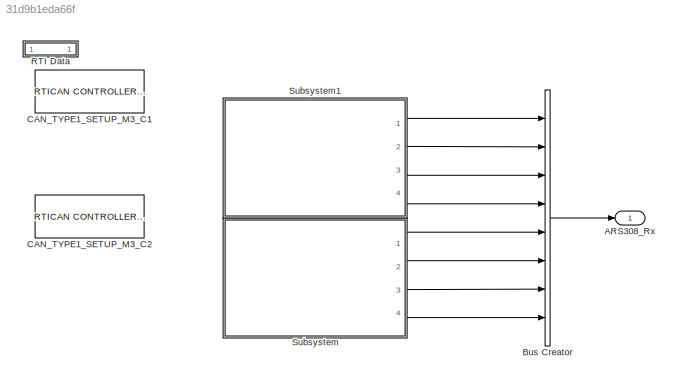
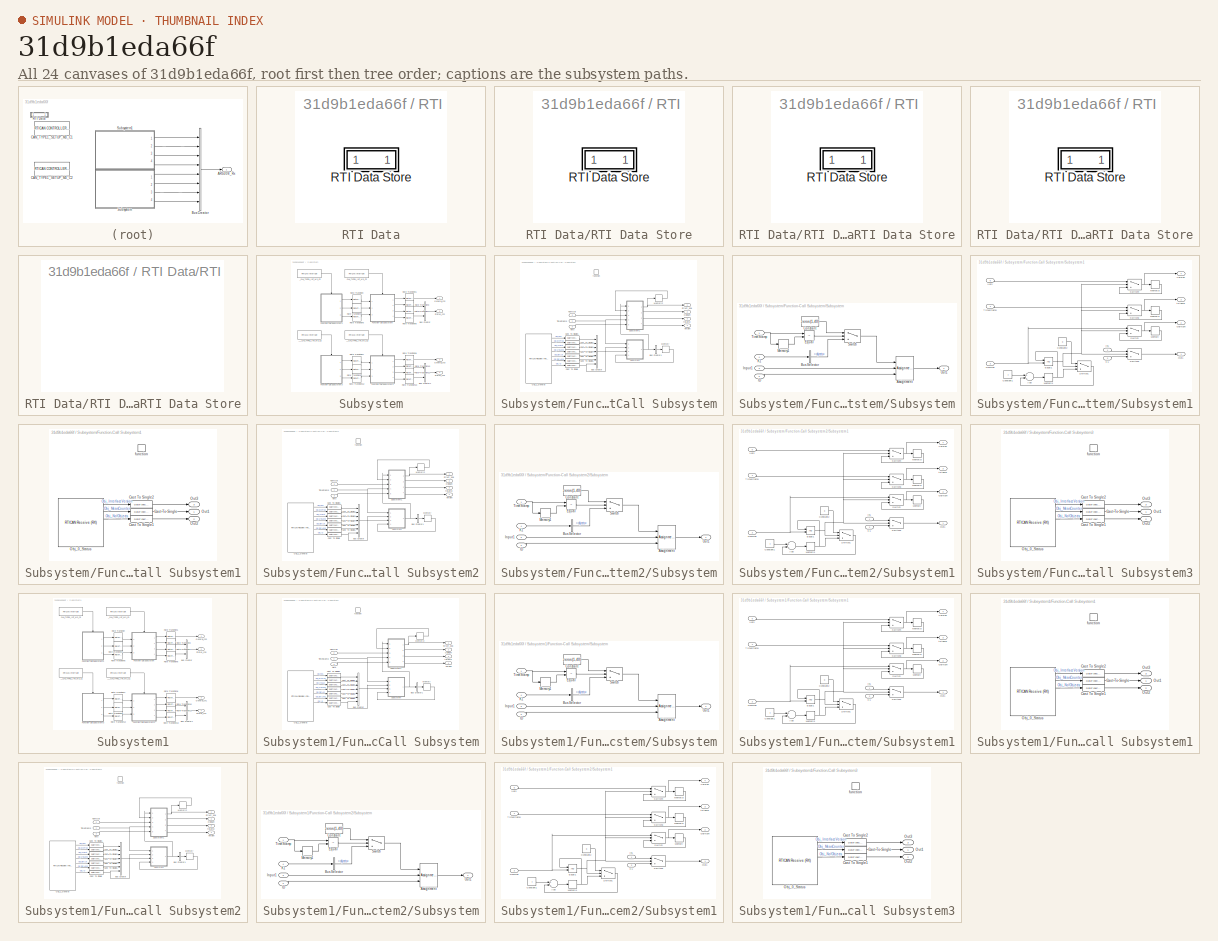
[diagram: thumbnail index - all 24 canvases of the model, root first then tree order]
MODEL slx_31d9b1eda66f
KIND model
CONFIG AbsTol = auto
CONFIG EnableMultiTasking = off
CONFIG FixedStep = 0.005
CONFIG MaxStep = auto
CONFIG MinStep = auto
CONFIG PostLoadFcn = if any(exist('dsrtsu_mdlpostloadfcn', 'file') ~= 0), dsrtsu_mdlpostloadfcn('Execute', bdroot); end
CONFIG RelTol = 1e-3
CONFIG SampleTimeConstraint = Unconstrained
CONFIG Solver = FixedStepAuto
CONFIG SolverName = FixedStepAuto
CONFIG StartTime = 0.0
CONFIG StopTime = inf
BLOCK [Outport] ARS308_Rx
  BusOutputAsStruct = on
  IconDisplay = Port number
  OutDataTypeStr = Bus: ARS308_RX
BLOCK [BusCreator] Bus Creator
  DisplayOption = bar
  InheritFromInputs = off
  Inputs = 8
  NonVirtualBus = on
  OutDataTypeStr = Bus: ARS308_RX
  Ports = [8, 1]
BLOCK [Reference] CAN_TYPE1_SETUP_M3_C1  REF=rtican/RTICAN
CONTROLLER SETUP 
  AttributesFormatString = Group Id: RTICAN2\n
  Ports = []
  SourceBlock = rtican/RTICAN\nCONTROLLER SETUP
  SourceProductName = dSPACE RTI CAN Blockset
  SourceType = RTI
BLOCK [Reference] CAN_TYPE1_SETUP_M3_C2  REF=rtican/RTICAN
CONTROLLER SETUP 
  AttributesFormatString = Group Id: RTICAN1\n
  Ports = []
  SourceBlock = rtican/RTICAN\nCONTROLLER SETUP
  SourceProductName = dSPACE RTI CAN Blockset
  SourceType = RTI
BLOCK [SubSystem] RTI Data
  CopyFcn = if exist('rtidc'), try,  rtidc('DataHostBlockClbCopy', gcbh); catch, disp(['Warning: ''CopyFcn'' for RTI Data block failed: ' lasterr]); end, end,
  DeleteFcn = if exist('rtidc'), try,  rtidc('DataHostBlockClbDelete', gcbh); catch, disp(['Warning: ''DeleteFcn'' for RTI Data block failed: ' lasterr]); end, end,
  LoadFcn = if exist('rtidc'), try,  rtidc('DataHostBlockClbLoad', gcbh); catch, disp(['Warning: ''LoadFcn'' for RTI Data block failed: ' lasterr]); end, end,
  ModelCloseFcn = if exist('rtidc'), try,  rtidc('DataHostBlockClbModelClose', gcbh); catch, disp(['Warning: ''ModelCloseFcn'' for RTI Data block failed: ' lasterr]); end, end,
  NameChangeFcn = if exist('rtidc'), try,  rtidc('DataHostBlockClbNameChange', gcbh); catch, disp(['Warning: ''NameChangeFcn'' for RTI Data block failed: ' lasterr]); end, end,
  Ports = []
  PostSaveFcn = if exist('rtidc'), try,  rtidc('DataHostBlockClbPostSave', gcbh); catch, disp(['Warning: ''PostSaveFcn'' for RTI Data block failed: ' lasterr]); end, end,
  PreSaveFcn = if exist('rtidc'), try,  rtidc('DataHostBlockClbPreSave', gcbh); catch, disp(['Warning: ''PreSaveFcn'' for RTI Data block failed: ' lasterr]); end, end,
  RequestExecContextInheritance = off
  Tag = struct('RTIDataServer',struct('RTIDataServerVs','2','RTIModelDescription','struct(''main'',''ARS308_RX'',''sub'',''ARS308_RX'',''isMp'',0)'))
BLOCK [SubSystem] RTI Data/RTI Data Store
  Ports = []
  RequestExecContextInheritance = off
  Tag = struct('private',struct('version',struct('dsVer',uint32(2),'dsVerCreation',uint32(2),'RTI',struct('ver','7.12','type','RTI1401')),'access',struct('type','Model','isPerm',1,'created',['24-Dec-2020 09:28:53'],'modified',['28-Dec-2020 13:55:52'],'location','')),'public',struct('main',struct('data',[]),'sub',struct('name',{{'ARS308_RX'}},'data',{{struct('TH',struct('thTaskInfo',struct('taskType',{'TIM...<+3733ch>
BLOCK [SubSystem] RTI Data/RTI Data Store/RTI Data Store
  Ports = []
  RequestExecContextInheritance = off
BLOCK [SubSystem] RTI Data/RTI Data Store/RTI Data Store/RTI Data Store
  Ports = []
  RequestExecContextInheritance = off
BLOCK [SubSystem] RTI Data/RTI Data Store/RTI Data Store/RTI Data Store/RTI Data Store
  Ports = []
  RequestExecContextInheritance = off
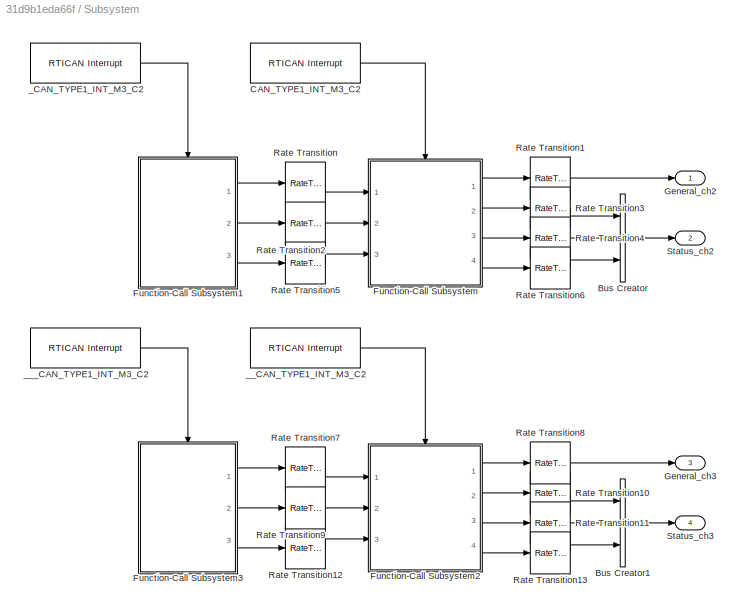
BLOCK [SubSystem] Subsystem
  Ports = [0, 4]
  RequestExecContextInheritance = off
BLOCK [BusCreator] Subsystem/Bus Creator
  DisplayOption = bar
  InheritFromInputs = off
  Inputs = 3
  NonVirtualBus = on
  OutDataTypeStr = Bus: Header_308
  Ports = [3, 1]
BLOCK [BusCreator] Subsystem/Bus Creator1
  DisplayOption = bar
  InheritFromInputs = off
  Inputs = 3
  NonVirtualBus = on
  OutDataTypeStr = Bus: Header_308
  Ports = [3, 1]
BLOCK [Reference] Subsystem/CAN_TYPE1_INT_M3_C2  REF=rtican/RTICAN
Interrupt
  AttributesFormatString = Group Id: RTICAN1\n
  Ports = [0, 1]
  SourceBlock = rtican/RTICAN\nInterrupt
  SourceProductName = dSPACE RTI CAN Blockset
  SourceType = RTI
BLOCK [SubSystem] Subsystem/Function-Call Subsystem
  Ports = [3, 4, 0, 1]
  RequestExecContextInheritance = off
  TreatAsAtomicUnit = on
BLOCK [BusCreator] Subsystem/Function-Call Subsystem/Bus Creator
  DisplayOption = bar
  InheritFromInputs = off
  Inputs = 7
  NonVirtualBus = on
  OutDataTypeStr = Bus: Bus_308
  Ports = [7, 1]
BLOCK [BusCreator] Subsystem/Function-Call Subsystem/Bus Creator1
  DisplayOption = bar
  InheritFromInputs = off
  Inputs = 1
  NonVirtualBus = on
  OutDataTypeStr = Bus: BusArray_308
  Ports = [1, 1]
BLOCK [DataTypeConversion] Subsystem/Function-Call Subsystem/Cast To Single
  OutDataTypeStr = single
  RndMeth = Floor
  SaturateOnIntegerOverflow = off
BLOCK [DataTypeConversion] Subsystem/Function-Call Subsystem/Cast To Single1
  OutDataTypeStr = single
  RndMeth = Floor
  SaturateOnIntegerOverflow = off
BLOCK [DataTypeConversion] Subsystem/Function-Call Subsystem/Cast To Single2
  OutDataTypeStr = single
  RndMeth = Floor
  SaturateOnIntegerOverflow = off
BLOCK [DataTypeConversion] Subsystem/Function-Call Subsystem/Cast To Single3
  OutDataTypeStr = single
  RndMeth = Floor
  SaturateOnIntegerOverflow = off
BLOCK [DataTypeConversion] Subsystem/Function-Call Subsystem/Cast To Single4
  OutDataTypeStr = single
  RndMeth = Floor
  SaturateOnIntegerOverflow = off
BLOCK [DataTypeConversion] Subsystem/Function-Call Subsystem/Cast To Single5
  OutDataTypeStr = single
  RndMeth = Floor
  SaturateOnIntegerOverflow = off
BLOCK [DataTypeConversion] Subsystem/Function-Call Subsystem/Cast To Single6
  OutDataTypeStr = single
  RndMeth = Floor
  SaturateOnIntegerOverflow = off
BLOCK [Memory] Subsystem/Function-Call Subsystem/Memory
  InheritSampleTime = on
BLOCK [Memory] Subsystem/Function-Call Subsystem/Memory2
  InheritSampleTime = on
BLOCK [Inport] Subsystem/Function-Call Subsystem/NumObj
  IconDisplay = Port number
  Port = 2
BLOCK [Outport] Subsystem/Function-Call Subsystem/ObjNum
  IconDisplay = Port number
  Port = 2
BLOCK [Reference] Subsystem/Function-Call Subsystem/Obj_1_General  REF=rtican/RTICAN
Receive (RX) 
  AttributesFormatString = Group Id: RTICAN1\n
  Ports = [0, 10]
  SourceBlock = rtican/RTICAN\nReceive (RX)
  SourceProductName = dSPACE RTI CAN Blockset
  SourceType = RTI
BLOCK [Outport] Subsystem/Function-Call Subsystem/Struct_308
  IconDisplay = Port number
  OutDataTypeStr = Bus: Bus_308
BLOCK [SubSystem] Subsystem/Function-Call Subsystem/Subsystem
  Ports = [4, 1]
  RequestExecContextInheritance = off
BLOCK [Assignment] Subsystem/Function-Call Subsystem/Subsystem/Assignment
  DiagnosticForDimensions = Warning
  IndexMode = Zero-based
  IndexOptions = Index vector (port)
  Indices = 1
  OutputSizes = 1
  Ports = [3, 1]
BLOCK [BusSelector] Subsystem/Function-Call Subsystem/Subsystem/Bus Selector
  OutputAsBus = off
  OutputSignals = objects
  Ports = [1, 1]
BLOCK [Constant] Subsystem/Function-Call Subsystem/Subsystem/Constant
  OutDataTypeStr = Bus: Bus_308
  Value = zeros(1,40)
BLOCK [RelationalOperator] Subsystem/Function-Call Subsystem/Subsystem/Equal
  InputSameDT = off
  Operator = ~=
  OutDataTypeStr = boolean
  Ports = [2, 1]
  RndMeth = Simplest
BLOCK [Inport] Subsystem/Function-Call Subsystem/Subsystem/ID
  IconDisplay = Port number
  Port = 2
BLOCK [Inport] Subsystem/Function-Call Subsystem/Subsystem/Input1
  IconDisplay = Port number
  Port = 3
BLOCK [Inport] Subsystem/Function-Call Subsystem/Subsystem/K1
  IconDisplay = Port number
  OutDataTypeStr = Bus: BusArray_308
  Port = 4
BLOCK [Memory] Subsystem/Function-Call Subsystem/Subsystem/Memory1
  InheritSampleTime = on
BLOCK [Outport] Subsystem/Function-Call Subsystem/Subsystem/Out1
  IconDisplay = Port number
  OutDataTypeStr = Bus: Bus_308
BLOCK [Switch] Subsystem/Function-Call Subsystem/Subsystem/Switch
  Criteria = u2 > Threshold
  InputSameDT = off
  SaturateOnIntegerOverflow = off
BLOCK [Inport] Subsystem/Function-Call Subsystem/Subsystem/TimeStamp
  IconDisplay = Port number
BLOCK [SubSystem] Subsystem/Function-Call Subsystem/Subsystem1
  Ports = [5, 4]
  RequestExecContextInheritance = off
BLOCK [Sum] Subsystem/Function-Call Subsystem/Subsystem1/Add
  InputSameDT = off
  OutDataTypeStr = Inherit: Inherit via internal rule
  Ports = [2, 1]
  SaturateOnIntegerOverflow = off
BLOCK [Constant] Subsystem/Function-Call Subsystem/Subsystem1/Constant1
  OutDataTypeStr = single
BLOCK [Constant] Subsystem/Function-Call Subsystem/Subsystem1/Constant2
  OutDataTypeStr = single
  Value = 0
BLOCK [RelationalOperator] Subsystem/Function-Call Subsystem/Subsystem1/Equal1
  InputSameDT = off
  OutDataTypeStr = boolean
  Ports = [2, 1]
  RndMeth = Simplest
BLOCK [Inport] Subsystem/Function-Call Subsystem/Subsystem1/In1
  IconDisplay = Port number
BLOCK [Inport] Subsystem/Function-Call Subsystem/Subsystem1/K1
  IconDisplay = Port number
  Port = 2
BLOCK [Memory] Subsystem/Function-Call Subsystem/Subsystem1/Memory
  InheritSampleTime = on
BLOCK [Memory] Subsystem/Function-Call Subsystem/Subsystem1/Memory1
  InheritSampleTime = on
  InitialCondition = 1
BLOCK [Memory] Subsystem/Function-Call Subsystem/Subsystem1/Memory2
  InheritSampleTime = on
BLOCK [Memory] Subsystem/Function-Call Subsystem/Subsystem1/Memory3
  InheritSampleTime = on
BLOCK [Inport] Subsystem/Function-Call Subsystem/Subsystem1/NumObj
  IconDisplay = Port number
  Port = 3
BLOCK [Outport] Subsystem/Function-Call Subsystem/Subsystem1/ObjNum
  IconDisplay = Port number
  Port = 2
BLOCK [Outport] Subsystem/Function-Call Subsystem/Subsystem1/Out1
  IconDisplay = Port number
BLOCK [Switch] Subsystem/Function-Call Subsystem/Subsystem1/Switch
  Criteria = u2 > Threshold
  InputSameDT = off
  SaturateOnIntegerOverflow = off
BLOCK [Switch] Subsystem/Function-Call Subsystem/Subsystem1/Switch1
  Criteria = u2 > Threshold
  InputSameDT = off
  SaturateOnIntegerOverflow = off
BLOCK [Switch] Subsystem/Function-Call Subsystem/Subsystem1/Switch2
  Criteria = u2 > Threshold
  InputSameDT = off
  SaturateOnIntegerOverflow = off
BLOCK [Switch] Subsystem/Function-Call Subsystem/Subsystem1/Switch3
  Criteria = u2 > Threshold
  InputSameDT = off
  SaturateOnIntegerOverflow = off
BLOCK [Switch] Subsystem/Function-Call Subsystem/Subsystem1/Switch4
  Criteria = u2 > Threshold
  InputSameDT = off
  SaturateOnIntegerOverflow = off
BLOCK [Inport] Subsystem/Function-Call Subsystem/Subsystem1/TimeStamp
  IconDisplay = Port number
  Port = 4
BLOCK [Inport] Subsystem/Function-Call Subsystem/Subsystem1/Vers
  IconDisplay = Port number
  Port = 5
BLOCK [Outport] Subsystem/Function-Call Subsystem/Subsystem1/Version
  IconDisplay = Port number
  Port = 4
BLOCK [Outport] Subsystem/Function-Call Subsystem/Subsystem1/tStamp
  IconDisplay = Port number
  Port = 3
BLOCK [Inport] Subsystem/Function-Call Subsystem/TimeStamp
  IconDisplay = Port number
BLOCK [Inport] Subsystem/Function-Call Subsystem/Vers
  IconDisplay = Port number
  Port = 3
BLOCK [Outport] Subsystem/Function-Call Subsystem/Version
  IconDisplay = Port number
  Port = 4
BLOCK [TriggerPort] Subsystem/Function-Call Subsystem/function
  Ports = []
  StatesWhenEnabling = held
  TriggerType = function-call
  VariantControl = Variant
BLOCK [Outport] Subsystem/Function-Call Subsystem/tStamp
  IconDisplay = Port number
  Port = 3
BLOCK [SubSystem] Subsystem/Function-Call Subsystem1
  Ports = [0, 3, 0, 1]
  RequestExecContextInheritance = off
  TreatAsAtomicUnit = on
BLOCK [DataTypeConversion] Subsystem/Function-Call Subsystem1/Cast To Single
  OutDataTypeStr = single
  RndMeth = Floor
  SaturateOnIntegerOverflow = off
BLOCK [DataTypeConversion] Subsystem/Function-Call Subsystem1/Cast To Single1
  OutDataTypeStr = single
  RndMeth = Floor
  SaturateOnIntegerOverflow = off
BLOCK [DataTypeConversion] Subsystem/Function-Call Subsystem1/Cast To Single2
  OutDataTypeStr = single
  RndMeth = Floor
  SaturateOnIntegerOverflow = off
BLOCK [Reference] Subsystem/Function-Call Subsystem1/Obj_0_Status  REF=rtican/RTICAN
Receive (RX) 
  AttributesFormatString = Group Id: RTICAN1\n
  Ports = [0, 6]
  SourceBlock = rtican/RTICAN\nReceive (RX)
  SourceProductName = dSPACE RTI CAN Blockset
  SourceType = RTI
BLOCK [Outport] Subsystem/Function-Call Subsystem1/Out1
  IconDisplay = Port number
BLOCK [Outport] Subsystem/Function-Call Subsystem1/Out2
  IconDisplay = Port number
  Port = 2
BLOCK [Outport] Subsystem/Function-Call Subsystem1/Out3
  IconDisplay = Port number
  Port = 3
BLOCK [TriggerPort] Subsystem/Function-Call Subsystem1/function
  Ports = []
  StatesWhenEnabling = held
  TriggerType = function-call
  VariantControl = Variant
BLOCK [SubSystem] Subsystem/Function-Call Subsystem2
  Ports = [3, 4, 0, 1]
  RequestExecContextInheritance = off
  TreatAsAtomicUnit = on
BLOCK [BusCreator] Subsystem/Function-Call Subsystem2/Bus Creator
  DisplayOption = bar
  InheritFromInputs = off
  Inputs = 7
  NonVirtualBus = on
  OutDataTypeStr = Bus: Bus_308
  Ports = [7, 1]
BLOCK [BusCreator] Subsystem/Function-Call Subsystem2/Bus Creator1
  DisplayOption = bar
  InheritFromInputs = off
  Inputs = 1
  NonVirtualBus = on
  OutDataTypeStr = Bus: BusArray_308
  Ports = [1, 1]
BLOCK [DataTypeConversion] Subsystem/Function-Call Subsystem2/Cast To Single
  OutDataTypeStr = single
  RndMeth = Floor
  SaturateOnIntegerOverflow = off
BLOCK [DataTypeConversion] Subsystem/Function-Call Subsystem2/Cast To Single1
  OutDataTypeStr = single
  RndMeth = Floor
  SaturateOnIntegerOverflow = off
BLOCK [DataTypeConversion] Subsystem/Function-Call Subsystem2/Cast To Single2
  OutDataTypeStr = single
  RndMeth = Floor
  SaturateOnIntegerOverflow = off
BLOCK [DataTypeConversion] Subsystem/Function-Call Subsystem2/Cast To Single3
  OutDataTypeStr = single
  RndMeth = Floor
  SaturateOnIntegerOverflow = off
BLOCK [DataTypeConversion] Subsystem/Function-Call Subsystem2/Cast To Single4
  OutDataTypeStr = single
  RndMeth = Floor
  SaturateOnIntegerOverflow = off
BLOCK [DataTypeConversion] Subsystem/Function-Call Subsystem2/Cast To Single5
  OutDataTypeStr = single
  RndMeth = Floor
  SaturateOnIntegerOverflow = off
BLOCK [DataTypeConversion] Subsystem/Function-Call Subsystem2/Cast To Single6
  OutDataTypeStr = single
  RndMeth = Floor
  SaturateOnIntegerOverflow = off
BLOCK [Memory] Subsystem/Function-Call Subsystem2/Memory
  InheritSampleTime = on
BLOCK [Memory] Subsystem/Function-Call Subsystem2/Memory2
  InheritSampleTime = on
BLOCK [Inport] Subsystem/Function-Call Subsystem2/NumObj
  IconDisplay = Port number
  Port = 2
BLOCK [Outport] Subsystem/Function-Call Subsystem2/ObjNum
  IconDisplay = Port number
  Port = 2
BLOCK [Reference] Subsystem/Function-Call Subsystem2/Obj_1_General  REF=rtican/RTICAN
Receive (RX) 
  AttributesFormatString = Group Id: RTICAN1\n
  Ports = [0, 10]
  SourceBlock = rtican/RTICAN\nReceive (RX)
  SourceProductName = dSPACE RTI CAN Blockset
  SourceType = RTI
BLOCK [Outport] Subsystem/Function-Call Subsystem2/Struct_308
  IconDisplay = Port number
  OutDataTypeStr = Bus: Bus_308
BLOCK [SubSystem] Subsystem/Function-Call Subsystem2/Subsystem
  Ports = [4, 1]
  RequestExecContextInheritance = off
BLOCK [Assignment] Subsystem/Function-Call Subsystem2/Subsystem/Assignment
  DiagnosticForDimensions = Warning
  IndexMode = Zero-based
  IndexOptions = Index vector (port)
  Indices = 1
  OutputSizes = 1
  Ports = [3, 1]
BLOCK [BusSelector] Subsystem/Function-Call Subsystem2/Subsystem/Bus Selector
  OutputAsBus = off
  OutputSignals = objects
  Ports = [1, 1]
BLOCK [Constant] Subsystem/Function-Call Subsystem2/Subsystem/Constant
  OutDataTypeStr = Bus: Bus_308
  Value = zeros(1,40)
BLOCK [RelationalOperator] Subsystem/Function-Call Subsystem2/Subsystem/Equal
  InputSameDT = off
  Operator = ~=
  OutDataTypeStr = boolean
  Ports = [2, 1]
  RndMeth = Simplest
BLOCK [Inport] Subsystem/Function-Call Subsystem2/Subsystem/ID
  IconDisplay = Port number
  Port = 2
BLOCK [Inport] Subsystem/Function-Call Subsystem2/Subsystem/Input1
  IconDisplay = Port number
  Port = 3
BLOCK [Inport] Subsystem/Function-Call Subsystem2/Subsystem/K1
  IconDisplay = Port number
  OutDataTypeStr = Bus: BusArray_308
  Port = 4
BLOCK [Memory] Subsystem/Function-Call Subsystem2/Subsystem/Memory1
  InheritSampleTime = on
BLOCK [Outport] Subsystem/Function-Call Subsystem2/Subsystem/Out1
  IconDisplay = Port number
  OutDataTypeStr = Bus: Bus_308
BLOCK [Switch] Subsystem/Function-Call Subsystem2/Subsystem/Switch
  Criteria = u2 > Threshold
  InputSameDT = off
  SaturateOnIntegerOverflow = off
BLOCK [Inport] Subsystem/Function-Call Subsystem2/Subsystem/TimeStamp
  IconDisplay = Port number
BLOCK [SubSystem] Subsystem/Function-Call Subsystem2/Subsystem1
  Ports = [5, 4]
  RequestExecContextInheritance = off
BLOCK [Sum] Subsystem/Function-Call Subsystem2/Subsystem1/Add
  InputSameDT = off
  OutDataTypeStr = Inherit: Inherit via internal rule
  Ports = [2, 1]
  SaturateOnIntegerOverflow = off
BLOCK [Constant] Subsystem/Function-Call Subsystem2/Subsystem1/Constant1
  OutDataTypeStr = single
BLOCK [Constant] Subsystem/Function-Call Subsystem2/Subsystem1/Constant2
  OutDataTypeStr = single
  Value = 0
BLOCK [RelationalOperator] Subsystem/Function-Call Subsystem2/Subsystem1/Equal1
  InputSameDT = off
  OutDataTypeStr = boolean
  Ports = [2, 1]
  RndMeth = Simplest
BLOCK [Inport] Subsystem/Function-Call Subsystem2/Subsystem1/In1
  IconDisplay = Port number
BLOCK [Inport] Subsystem/Function-Call Subsystem2/Subsystem1/K1
  IconDisplay = Port number
  Port = 2
BLOCK [Memory] Subsystem/Function-Call Subsystem2/Subsystem1/Memory
  InheritSampleTime = on
BLOCK [Memory] Subsystem/Function-Call Subsystem2/Subsystem1/Memory1
  InheritSampleTime = on
  InitialCondition = 1
BLOCK [Memory] Subsystem/Function-Call Subsystem2/Subsystem1/Memory2
  InheritSampleTime = on
BLOCK [Memory] Subsystem/Function-Call Subsystem2/Subsystem1/Memory3
  InheritSampleTime = on
BLOCK [Inport] Subsystem/Function-Call Subsystem2/Subsystem1/NumObj
  IconDisplay = Port number
  Port = 3
BLOCK [Outport] Subsystem/Function-Call Subsystem2/Subsystem1/ObjNum
  IconDisplay = Port number
  Port = 2
BLOCK [Outport] Subsystem/Function-Call Subsystem2/Subsystem1/Out1
  IconDisplay = Port number
BLOCK [Switch] Subsystem/Function-Call Subsystem2/Subsystem1/Switch
  Criteria = u2 > Threshold
  InputSameDT = off
  SaturateOnIntegerOverflow = off
BLOCK [Switch] Subsystem/Function-Call Subsystem2/Subsystem1/Switch1
  Criteria = u2 > Threshold
  InputSameDT = off
  SaturateOnIntegerOverflow = off
BLOCK [Switch] Subsystem/Function-Call Subsystem2/Subsystem1/Switch2
  Criteria = u2 > Threshold
  InputSameDT = off
  SaturateOnIntegerOverflow = off
BLOCK [Switch] Subsystem/Function-Call Subsystem2/Subsystem1/Switch3
  Criteria = u2 > Threshold
  InputSameDT = off
  SaturateOnIntegerOverflow = off
BLOCK [Switch] Subsystem/Function-Call Subsystem2/Subsystem1/Switch4
  Criteria = u2 > Threshold
  InputSameDT = off
  SaturateOnIntegerOverflow = off
BLOCK [Inport] Subsystem/Function-Call Subsystem2/Subsystem1/TimeStamp
  IconDisplay = Port number
  Port = 4
BLOCK [Inport] Subsystem/Function-Call Subsystem2/Subsystem1/Vers
  IconDisplay = Port number
  Port = 5
BLOCK [Outport] Subsystem/Function-Call Subsystem2/Subsystem1/Version
  IconDisplay = Port number
  Port = 4
BLOCK [Outport] Subsystem/Function-Call Subsystem2/Subsystem1/tStamp
  IconDisplay = Port number
  Port = 3
BLOCK [Inport] Subsystem/Function-Call Subsystem2/TimeStamp
  IconDisplay = Port number
BLOCK [Inport] Subsystem/Function-Call Subsystem2/Vers
  IconDisplay = Port number
  Port = 3
BLOCK [Outport] Subsystem/Function-Call Subsystem2/Version
  IconDisplay = Port number
  Port = 4
BLOCK [TriggerPort] Subsystem/Function-Call Subsystem2/function
  Ports = []
  StatesWhenEnabling = held
  TriggerType = function-call
  VariantControl = Variant
BLOCK [Outport] Subsystem/Function-Call Subsystem2/tStamp
  IconDisplay = Port number
  Port = 3
BLOCK [SubSystem] Subsystem/Function-Call Subsystem3
  Ports = [0, 3, 0, 1]
  RequestExecContextInheritance = off
  TreatAsAtomicUnit = on
BLOCK [DataTypeConversion] Subsystem/Function-Call Subsystem3/Cast To Single
  OutDataTypeStr = single
  RndMeth = Floor
  SaturateOnIntegerOverflow = off
BLOCK [DataTypeConversion] Subsystem/Function-Call Subsystem3/Cast To Single1
  OutDataTypeStr = single
  RndMeth = Floor
  SaturateOnIntegerOverflow = off
BLOCK [DataTypeConversion] Subsystem/Function-Call Subsystem3/Cast To Single2
  OutDataTypeStr = single
  RndMeth = Floor
  SaturateOnIntegerOverflow = off
BLOCK [Reference] Subsystem/Function-Call Subsystem3/Obj_0_Status  REF=rtican/RTICAN
Receive (RX) 
  AttributesFormatString = Group Id: RTICAN1\n
  Ports = [0, 6]
  SourceBlock = rtican/RTICAN\nReceive (RX)
  SourceProductName = dSPACE RTI CAN Blockset
  SourceType = RTI
BLOCK [Outport] Subsystem/Function-Call Subsystem3/Out1
  IconDisplay = Port number
BLOCK [Outport] Subsystem/Function-Call Subsystem3/Out2
  IconDisplay = Port number
  Port = 2
BLOCK [Outport] Subsystem/Function-Call Subsystem3/Out3
  IconDisplay = Port number
  Port = 3
BLOCK [TriggerPort] Subsystem/Function-Call Subsystem3/function
  Ports = []
  StatesWhenEnabling = held
  TriggerType = function-call
  VariantControl = Variant
BLOCK [Outport] Subsystem/General_ch2
  IconDisplay = Port number
  OutDataTypeStr = Bus: Bus_308
BLOCK [Outport] Subsystem/General_ch3
  IconDisplay = Port number
  OutDataTypeStr = Bus: Bus_308
  Port = 3
BLOCK [RateTransition] Subsystem/Rate Transition
  Deterministic = off
BLOCK [RateTransition] Subsystem/Rate Transition1
  Deterministic = off
BLOCK [RateTransition] Subsystem/Rate Transition10
  Deterministic = off
BLOCK [RateTransition] Subsystem/Rate Transition11
  Deterministic = off
BLOCK [RateTransition] Subsystem/Rate Transition12
  Deterministic = off
BLOCK [RateTransition] Subsystem/Rate Transition13
  Deterministic = off
BLOCK [RateTransition] Subsystem/Rate Transition2
  Deterministic = off
BLOCK [RateTransition] Subsystem/Rate Transition3
  Deterministic = off
BLOCK [RateTransition] Subsystem/Rate Transition4
  Deterministic = off
BLOCK [RateTransition] Subsystem/Rate Transition5
  Deterministic = off
BLOCK [RateTransition] Subsystem/Rate Transition6
  Deterministic = off
BLOCK [RateTransition] Subsystem/Rate Transition7
  Deterministic = off
BLOCK [RateTransition] Subsystem/Rate Transition8
  Deterministic = off
BLOCK [RateTransition] Subsystem/Rate Transition9
  Deterministic = off
BLOCK [Outport] Subsystem/Status_ch2
  IconDisplay = Port number
  OutDataTypeStr = Bus: Header_308
  Port = 2
BLOCK [Outport] Subsystem/Status_ch3
  IconDisplay = Port number
  OutDataTypeStr = Bus: Header_308
  Port = 4
BLOCK [Reference] Subsystem/_CAN_TYPE1_INT_M3_C2  REF=rtican/RTICAN
Interrupt
  AttributesFormatString = Group Id: RTICAN1\n
  Ports = [0, 1]
  SourceBlock = rtican/RTICAN\nInterrupt
  SourceProductName = dSPACE RTI CAN Blockset
  SourceType = RTI
BLOCK [Reference] Subsystem/__CAN_TYPE1_INT_M3_C2  REF=rtican/RTICAN
Interrupt
  AttributesFormatString = Group Id: RTICAN1\n
  Ports = [0, 1]
  SourceBlock = rtican/RTICAN\nInterrupt
  SourceProductName = dSPACE RTI CAN Blockset
  SourceType = RTI
BLOCK [Reference] Subsystem/___CAN_TYPE1_INT_M3_C2  REF=rtican/RTICAN
Interrupt
  AttributesFormatString = Group Id: RTICAN1\n
  Ports = [0, 1]
  SourceBlock = rtican/RTICAN\nInterrupt
  SourceProductName = dSPACE RTI CAN Blockset
  SourceType = RTI
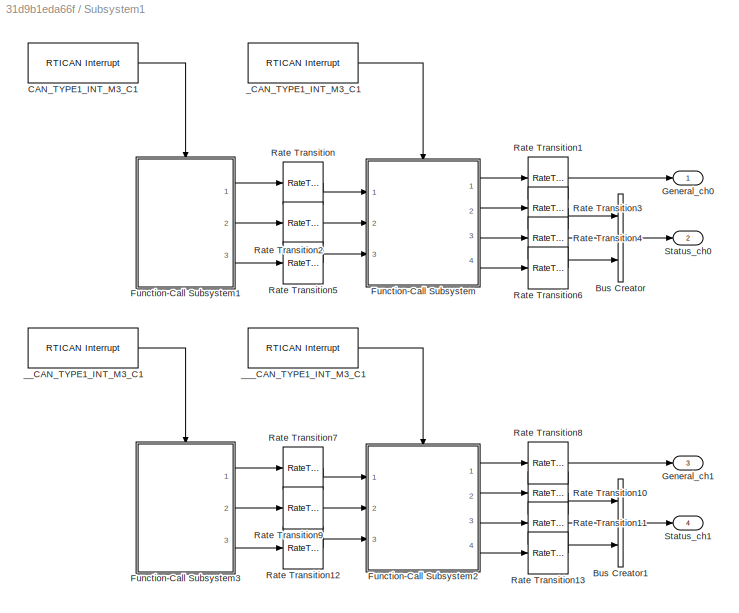
BLOCK [SubSystem] Subsystem1
  Ports = [0, 4]
  RequestExecContextInheritance = off
BLOCK [BusCreator] Subsystem1/Bus Creator
  DisplayOption = bar
  InheritFromInputs = off
  Inputs = 3
  NonVirtualBus = on
  OutDataTypeStr = Bus: Header_308
  Ports = [3, 1]
BLOCK [BusCreator] Subsystem1/Bus Creator1
  DisplayOption = bar
  InheritFromInputs = off
  Inputs = 3
  NonVirtualBus = on
  OutDataTypeStr = Bus: Header_308
  Ports = [3, 1]
BLOCK [Reference] Subsystem1/CAN_TYPE1_INT_M3_C1  REF=rtican/RTICAN
Interrupt
  AttributesFormatString = Group Id: RTICAN2\n
  Ports = [0, 1]
  SourceBlock = rtican/RTICAN\nInterrupt
  SourceProductName = dSPACE RTI CAN Blockset
  SourceType = RTI
BLOCK [SubSystem] Subsystem1/Function-Call Subsystem
  Ports = [3, 4, 0, 1]
  RequestExecContextInheritance = off
  TreatAsAtomicUnit = on
BLOCK [BusCreator] Subsystem1/Function-Call Subsystem/Bus Creator
  DisplayOption = bar
  InheritFromInputs = off
  Inputs = 7
  NonVirtualBus = on
  OutDataTypeStr = Bus: Bus_308
  Ports = [7, 1]
BLOCK [BusCreator] Subsystem1/Function-Call Subsystem/Bus Creator1
  DisplayOption = bar
  InheritFromInputs = off
  Inputs = 1
  NonVirtualBus = on
  OutDataTypeStr = Bus: BusArray_308
  Ports = [1, 1]
BLOCK [DataTypeConversion] Subsystem1/Function-Call Subsystem/Cast To Single
  OutDataTypeStr = single
  RndMeth = Floor
  SaturateOnIntegerOverflow = off
BLOCK [DataTypeConversion] Subsystem1/Function-Call Subsystem/Cast To Single1
  OutDataTypeStr = single
  RndMeth = Floor
  SaturateOnIntegerOverflow = off
BLOCK [DataTypeConversion] Subsystem1/Function-Call Subsystem/Cast To Single2
  OutDataTypeStr = single
  RndMeth = Floor
  SaturateOnIntegerOverflow = off
BLOCK [DataTypeConversion] Subsystem1/Function-Call Subsystem/Cast To Single3
  OutDataTypeStr = single
  RndMeth = Floor
  SaturateOnIntegerOverflow = off
BLOCK [DataTypeConversion] Subsystem1/Function-Call Subsystem/Cast To Single4
  OutDataTypeStr = single
  RndMeth = Floor
  SaturateOnIntegerOverflow = off
BLOCK [DataTypeConversion] Subsystem1/Function-Call Subsystem/Cast To Single5
  OutDataTypeStr = single
  RndMeth = Floor
  SaturateOnIntegerOverflow = off
BLOCK [DataTypeConversion] Subsystem1/Function-Call Subsystem/Cast To Single6
  OutDataTypeStr = single
  RndMeth = Floor
  SaturateOnIntegerOverflow = off
BLOCK [Memory] Subsystem1/Function-Call Subsystem/Memory
  InheritSampleTime = on
BLOCK [Memory] Subsystem1/Function-Call Subsystem/Memory2
  InheritSampleTime = on
BLOCK [Inport] Subsystem1/Function-Call Subsystem/NumObj
  IconDisplay = Port number
  Port = 2
BLOCK [Outport] Subsystem1/Function-Call Subsystem/ObjNum
  IconDisplay = Port number
  Port = 2
BLOCK [Reference] Subsystem1/Function-Call Subsystem/Obj_1_General  REF=rtican/RTICAN
Receive (RX) 
  AttributesFormatString = Group Id: RTICAN2\n
  Ports = [0, 10]
  SourceBlock = rtican/RTICAN\nReceive (RX)
  SourceProductName = dSPACE RTI CAN Blockset
  SourceType = RTI
BLOCK [Outport] Subsystem1/Function-Call Subsystem/Struct_308
  IconDisplay = Port number
  OutDataTypeStr = Bus: Bus_308
BLOCK [SubSystem] Subsystem1/Function-Call Subsystem/Subsystem
  Ports = [4, 1]
  RequestExecContextInheritance = off
BLOCK [Assignment] Subsystem1/Function-Call Subsystem/Subsystem/Assignment
  DiagnosticForDimensions = Warning
  IndexMode = Zero-based
  IndexOptions = Index vector (port)
  Indices = 1
  OutputSizes = 1
  Ports = [3, 1]
BLOCK [BusSelector] Subsystem1/Function-Call Subsystem/Subsystem/Bus Selector
  OutputAsBus = off
  OutputSignals = objects
  Ports = [1, 1]
BLOCK [Constant] Subsystem1/Function-Call Subsystem/Subsystem/Constant
  OutDataTypeStr = Bus: Bus_308
  Value = zeros(1,40)
BLOCK [RelationalOperator] Subsystem1/Function-Call Subsystem/Subsystem/Equal
  InputSameDT = off
  Operator = ~=
  OutDataTypeStr = boolean
  Ports = [2, 1]
  RndMeth = Simplest
BLOCK [Inport] Subsystem1/Function-Call Subsystem/Subsystem/ID
  IconDisplay = Port number
  Port = 2
BLOCK [Inport] Subsystem1/Function-Call Subsystem/Subsystem/Input1
  IconDisplay = Port number
  Port = 3
BLOCK [Inport] Subsystem1/Function-Call Subsystem/Subsystem/K1
  IconDisplay = Port number
  OutDataTypeStr = Bus: BusArray_308
  Port = 4
BLOCK [Memory] Subsystem1/Function-Call Subsystem/Subsystem/Memory1
  InheritSampleTime = on
BLOCK [Outport] Subsystem1/Function-Call Subsystem/Subsystem/Out1
  IconDisplay = Port number
  OutDataTypeStr = Bus: Bus_308
BLOCK [Switch] Subsystem1/Function-Call Subsystem/Subsystem/Switch
  Criteria = u2 > Threshold
  InputSameDT = off
  SaturateOnIntegerOverflow = off
BLOCK [Inport] Subsystem1/Function-Call Subsystem/Subsystem/TimeStamp
  IconDisplay = Port number
BLOCK [SubSystem] Subsystem1/Function-Call Subsystem/Subsystem1
  Ports = [5, 4]
  RequestExecContextInheritance = off
BLOCK [Sum] Subsystem1/Function-Call Subsystem/Subsystem1/Add
  InputSameDT = off
  OutDataTypeStr = Inherit: Inherit via internal rule
  Ports = [2, 1]
  SaturateOnIntegerOverflow = off
BLOCK [Constant] Subsystem1/Function-Call Subsystem/Subsystem1/Constant1
  OutDataTypeStr = single
BLOCK [Constant] Subsystem1/Function-Call Subsystem/Subsystem1/Constant2
  OutDataTypeStr = single
  Value = 0
BLOCK [RelationalOperator] Subsystem1/Function-Call Subsystem/Subsystem1/Equal1
  InputSameDT = off
  OutDataTypeStr = boolean
  Ports = [2, 1]
  RndMeth = Simplest
BLOCK [Inport] Subsystem1/Function-Call Subsystem/Subsystem1/In1
  IconDisplay = Port number
BLOCK [Inport] Subsystem1/Function-Call Subsystem/Subsystem1/K1
  IconDisplay = Port number
  Port = 2
BLOCK [Memory] Subsystem1/Function-Call Subsystem/Subsystem1/Memory
  InheritSampleTime = on
BLOCK [Memory] Subsystem1/Function-Call Subsystem/Subsystem1/Memory1
  InheritSampleTime = on
  InitialCondition = 1
BLOCK [Memory] Subsystem1/Function-Call Subsystem/Subsystem1/Memory2
  InheritSampleTime = on
BLOCK [Memory] Subsystem1/Function-Call Subsystem/Subsystem1/Memory3
  InheritSampleTime = on
BLOCK [Inport] Subsystem1/Function-Call Subsystem/Subsystem1/NumObj
  IconDisplay = Port number
  Port = 3
BLOCK [Outport] Subsystem1/Function-Call Subsystem/Subsystem1/ObjNum
  IconDisplay = Port number
  Port = 2
BLOCK [Outport] Subsystem1/Function-Call Subsystem/Subsystem1/Out1
  IconDisplay = Port number
BLOCK [Switch] Subsystem1/Function-Call Subsystem/Subsystem1/Switch
  Criteria = u2 > Threshold
  InputSameDT = off
  SaturateOnIntegerOverflow = off
BLOCK [Switch] Subsystem1/Function-Call Subsystem/Subsystem1/Switch1
  Criteria = u2 > Threshold
  InputSameDT = off
  SaturateOnIntegerOverflow = off
BLOCK [Switch] Subsystem1/Function-Call Subsystem/Subsystem1/Switch2
  Criteria = u2 > Threshold
  InputSameDT = off
  SaturateOnIntegerOverflow = off
BLOCK [Switch] Subsystem1/Function-Call Subsystem/Subsystem1/Switch3
  Criteria = u2 > Threshold
  InputSameDT = off
  SaturateOnIntegerOverflow = off
BLOCK [Switch] Subsystem1/Function-Call Subsystem/Subsystem1/Switch4
  Criteria = u2 > Threshold
  InputSameDT = off
  SaturateOnIntegerOverflow = off
BLOCK [Inport] Subsystem1/Function-Call Subsystem/Subsystem1/TimeStamp
  IconDisplay = Port number
  Port = 4
BLOCK [Inport] Subsystem1/Function-Call Subsystem/Subsystem1/Vers
  IconDisplay = Port number
  Port = 5
BLOCK [Outport] Subsystem1/Function-Call Subsystem/Subsystem1/Version
  IconDisplay = Port number
  Port = 4
BLOCK [Outport] Subsystem1/Function-Call Subsystem/Subsystem1/tStamp
  IconDisplay = Port number
  Port = 3
BLOCK [Inport] Subsystem1/Function-Call Subsystem/TimeStamp
  IconDisplay = Port number
BLOCK [Inport] Subsystem1/Function-Call Subsystem/Vers
  IconDisplay = Port number
  Port = 3
BLOCK [Outport] Subsystem1/Function-Call Subsystem/Version
  IconDisplay = Port number
  Port = 4
BLOCK [TriggerPort] Subsystem1/Function-Call Subsystem/function
  Ports = []
  StatesWhenEnabling = held
  TriggerType = function-call
  VariantControl = Variant
BLOCK [Outport] Subsystem1/Function-Call Subsystem/tStamp
  IconDisplay = Port number
  Port = 3
BLOCK [SubSystem] Subsystem1/Function-Call Subsystem1
  Ports = [0, 3, 0, 1]
  RequestExecContextInheritance = off
  TreatAsAtomicUnit = on
BLOCK [DataTypeConversion] Subsystem1/Function-Call Subsystem1/Cast To Single
  OutDataTypeStr = single
  RndMeth = Floor
  SaturateOnIntegerOverflow = off
BLOCK [DataTypeConversion] Subsystem1/Function-Call Subsystem1/Cast To Single1
  OutDataTypeStr = single
  RndMeth = Floor
  SaturateOnIntegerOverflow = off
BLOCK [DataTypeConversion] Subsystem1/Function-Call Subsystem1/Cast To Single2
  OutDataTypeStr = single
  RndMeth = Floor
  SaturateOnIntegerOverflow = off
BLOCK [Reference] Subsystem1/Function-Call Subsystem1/Obj_0_Status  REF=rtican/RTICAN
Receive (RX) 
  AttributesFormatString = Group Id: RTICAN2\n
  Ports = [0, 6]
  SourceBlock = rtican/RTICAN\nReceive (RX)
  SourceProductName = dSPACE RTI CAN Blockset
  SourceType = RTI
BLOCK [Outport] Subsystem1/Function-Call Subsystem1/Out1
  IconDisplay = Port number
BLOCK [Outport] Subsystem1/Function-Call Subsystem1/Out2
  IconDisplay = Port number
  Port = 2
BLOCK [Outport] Subsystem1/Function-Call Subsystem1/Out3
  IconDisplay = Port number
  Port = 3
BLOCK [TriggerPort] Subsystem1/Function-Call Subsystem1/function
  Ports = []
  StatesWhenEnabling = held
  TriggerType = function-call
  VariantControl = Variant
BLOCK [SubSystem] Subsystem1/Function-Call Subsystem2
  Ports = [3, 4, 0, 1]
  RequestExecContextInheritance = off
  TreatAsAtomicUnit = on
BLOCK [BusCreator] Subsystem1/Function-Call Subsystem2/Bus Creator
  DisplayOption = bar
  InheritFromInputs = off
  Inputs = 7
  NonVirtualBus = on
  OutDataTypeStr = Bus: Bus_308
  Ports = [7, 1]
BLOCK [BusCreator] Subsystem1/Function-Call Subsystem2/Bus Creator1
  DisplayOption = bar
  InheritFromInputs = off
  Inputs = 1
  NonVirtualBus = on
  OutDataTypeStr = Bus: BusArray_308
  Ports = [1, 1]
BLOCK [DataTypeConversion] Subsystem1/Function-Call Subsystem2/Cast To Single
  OutDataTypeStr = single
  RndMeth = Floor
  SaturateOnIntegerOverflow = off
BLOCK [DataTypeConversion] Subsystem1/Function-Call Subsystem2/Cast To Single1
  OutDataTypeStr = single
  RndMeth = Floor
  SaturateOnIntegerOverflow = off
BLOCK [DataTypeConversion] Subsystem1/Function-Call Subsystem2/Cast To Single2
  OutDataTypeStr = single
  RndMeth = Floor
  SaturateOnIntegerOverflow = off
BLOCK [DataTypeConversion] Subsystem1/Function-Call Subsystem2/Cast To Single3
  OutDataTypeStr = single
  RndMeth = Floor
  SaturateOnIntegerOverflow = off
BLOCK [DataTypeConversion] Subsystem1/Function-Call Subsystem2/Cast To Single4
  OutDataTypeStr = single
  RndMeth = Floor
  SaturateOnIntegerOverflow = off
BLOCK [DataTypeConversion] Subsystem1/Function-Call Subsystem2/Cast To Single5
  OutDataTypeStr = single
  RndMeth = Floor
  SaturateOnIntegerOverflow = off
BLOCK [DataTypeConversion] Subsystem1/Function-Call Subsystem2/Cast To Single6
  OutDataTypeStr = single
  RndMeth = Floor
  SaturateOnIntegerOverflow = off
BLOCK [Memory] Subsystem1/Function-Call Subsystem2/Memory
  InheritSampleTime = on
BLOCK [Memory] Subsystem1/Function-Call Subsystem2/Memory2
  InheritSampleTime = on
BLOCK [Inport] Subsystem1/Function-Call Subsystem2/NumObj
  IconDisplay = Port number
  Port = 2
BLOCK [Outport] Subsystem1/Function-Call Subsystem2/ObjNum
  IconDisplay = Port number
  Port = 2
BLOCK [Reference] Subsystem1/Function-Call Subsystem2/Obj_1_General  REF=rtican/RTICAN
Receive (RX) 
  AttributesFormatString = Group Id: RTICAN2\n
  Ports = [0, 10]
  SourceBlock = rtican/RTICAN\nReceive (RX)
  SourceProductName = dSPACE RTI CAN Blockset
  SourceType = RTI
BLOCK [Outport] Subsystem1/Function-Call Subsystem2/Struct_308
  IconDisplay = Port number
  OutDataTypeStr = Bus: Bus_308
BLOCK [SubSystem] Subsystem1/Function-Call Subsystem2/Subsystem
  Ports = [4, 1]
  RequestExecContextInheritance = off
BLOCK [Assignment] Subsystem1/Function-Call Subsystem2/Subsystem/Assignment
  DiagnosticForDimensions = Warning
  IndexMode = Zero-based
  IndexOptions = Index vector (port)
  Indices = 1
  OutputSizes = 1
  Ports = [3, 1]
BLOCK [BusSelector] Subsystem1/Function-Call Subsystem2/Subsystem/Bus Selector
  OutputAsBus = off
  OutputSignals = objects
  Ports = [1, 1]
BLOCK [Constant] Subsystem1/Function-Call Subsystem2/Subsystem/Constant
  OutDataTypeStr = Bus: Bus_308
  Value = zeros(1,40)
BLOCK [RelationalOperator] Subsystem1/Function-Call Subsystem2/Subsystem/Equal
  InputSameDT = off
  Operator = ~=
  OutDataTypeStr = boolean
  Ports = [2, 1]
  RndMeth = Simplest
BLOCK [Inport] Subsystem1/Function-Call Subsystem2/Subsystem/ID
  IconDisplay = Port number
  Port = 2
BLOCK [Inport] Subsystem1/Function-Call Subsystem2/Subsystem/Input1
  IconDisplay = Port number
  Port = 3
BLOCK [Inport] Subsystem1/Function-Call Subsystem2/Subsystem/K1
  IconDisplay = Port number
  OutDataTypeStr = Bus: BusArray_308
  Port = 4
BLOCK [Memory] Subsystem1/Function-Call Subsystem2/Subsystem/Memory1
  InheritSampleTime = on
BLOCK [Outport] Subsystem1/Function-Call Subsystem2/Subsystem/Out1
  IconDisplay = Port number
  OutDataTypeStr = Bus: Bus_308
BLOCK [Switch] Subsystem1/Function-Call Subsystem2/Subsystem/Switch
  Criteria = u2 > Threshold
  InputSameDT = off
  SaturateOnIntegerOverflow = off
BLOCK [Inport] Subsystem1/Function-Call Subsystem2/Subsystem/TimeStamp
  IconDisplay = Port number
BLOCK [SubSystem] Subsystem1/Function-Call Subsystem2/Subsystem1
  Ports = [5, 4]
  RequestExecContextInheritance = off
BLOCK [Sum] Subsystem1/Function-Call Subsystem2/Subsystem1/Add
  InputSameDT = off
  OutDataTypeStr = Inherit: Inherit via internal rule
  Ports = [2, 1]
  SaturateOnIntegerOverflow = off
BLOCK [Constant] Subsystem1/Function-Call Subsystem2/Subsystem1/Constant1
  OutDataTypeStr = single
BLOCK [Constant] Subsystem1/Function-Call Subsystem2/Subsystem1/Constant2
  OutDataTypeStr = single
  Value = 0
BLOCK [RelationalOperator] Subsystem1/Function-Call Subsystem2/Subsystem1/Equal1
  InputSameDT = off
  OutDataTypeStr = boolean
  Ports = [2, 1]
  RndMeth = Simplest
BLOCK [Inport] Subsystem1/Function-Call Subsystem2/Subsystem1/In1
  IconDisplay = Port number
BLOCK [Inport] Subsystem1/Function-Call Subsystem2/Subsystem1/K1
  IconDisplay = Port number
  Port = 2
BLOCK [Memory] Subsystem1/Function-Call Subsystem2/Subsystem1/Memory
  InheritSampleTime = on
BLOCK [Memory] Subsystem1/Function-Call Subsystem2/Subsystem1/Memory1
  InheritSampleTime = on
  InitialCondition = 1
BLOCK [Memory] Subsystem1/Function-Call Subsystem2/Subsystem1/Memory2
  InheritSampleTime = on
BLOCK [Memory] Subsystem1/Function-Call Subsystem2/Subsystem1/Memory3
  InheritSampleTime = on
BLOCK [Inport] Subsystem1/Function-Call Subsystem2/Subsystem1/NumObj
  IconDisplay = Port number
  Port = 3
BLOCK [Outport] Subsystem1/Function-Call Subsystem2/Subsystem1/ObjNum
  IconDisplay = Port number
  Port = 2
BLOCK [Outport] Subsystem1/Function-Call Subsystem2/Subsystem1/Out1
  IconDisplay = Port number
BLOCK [Switch] Subsystem1/Function-Call Subsystem2/Subsystem1/Switch
  Criteria = u2 > Threshold
  InputSameDT = off
  SaturateOnIntegerOverflow = off
BLOCK [Switch] Subsystem1/Function-Call Subsystem2/Subsystem1/Switch1
  Criteria = u2 > Threshold
  InputSameDT = off
  SaturateOnIntegerOverflow = off
BLOCK [Switch] Subsystem1/Function-Call Subsystem2/Subsystem1/Switch2
  Criteria = u2 > Threshold
  InputSameDT = off
  SaturateOnIntegerOverflow = off
BLOCK [Switch] Subsystem1/Function-Call Subsystem2/Subsystem1/Switch3
  Criteria = u2 > Threshold
  InputSameDT = off
  SaturateOnIntegerOverflow = off
BLOCK [Switch] Subsystem1/Function-Call Subsystem2/Subsystem1/Switch4
  Criteria = u2 > Threshold
  InputSameDT = off
  SaturateOnIntegerOverflow = off
BLOCK [Inport] Subsystem1/Function-Call Subsystem2/Subsystem1/TimeStamp
  IconDisplay = Port number
  Port = 4
BLOCK [Inport] Subsystem1/Function-Call Subsystem2/Subsystem1/Vers
  IconDisplay = Port number
  Port = 5
BLOCK [Outport] Subsystem1/Function-Call Subsystem2/Subsystem1/Version
  IconDisplay = Port number
  Port = 4
BLOCK [Outport] Subsystem1/Function-Call Subsystem2/Subsystem1/tStamp
  IconDisplay = Port number
  Port = 3
BLOCK [Inport] Subsystem1/Function-Call Subsystem2/TimeStamp
  IconDisplay = Port number
BLOCK [Inport] Subsystem1/Function-Call Subsystem2/Vers
  IconDisplay = Port number
  Port = 3
BLOCK [Outport] Subsystem1/Function-Call Subsystem2/Version
  IconDisplay = Port number
  Port = 4
BLOCK [TriggerPort] Subsystem1/Function-Call Subsystem2/function
  Ports = []
  StatesWhenEnabling = held
  TriggerType = function-call
  VariantControl = Variant
BLOCK [Outport] Subsystem1/Function-Call Subsystem2/tStamp
  IconDisplay = Port number
  Port = 3
BLOCK [SubSystem] Subsystem1/Function-Call Subsystem3
  Ports = [0, 3, 0, 1]
  RequestExecContextInheritance = off
  TreatAsAtomicUnit = on
BLOCK [DataTypeConversion] Subsystem1/Function-Call Subsystem3/Cast To Single
  OutDataTypeStr = single
  RndMeth = Floor
  SaturateOnIntegerOverflow = off
BLOCK [DataTypeConversion] Subsystem1/Function-Call Subsystem3/Cast To Single1
  OutDataTypeStr = single
  RndMeth = Floor
  SaturateOnIntegerOverflow = off
BLOCK [DataTypeConversion] Subsystem1/Function-Call Subsystem3/Cast To Single2
  OutDataTypeStr = single
  RndMeth = Floor
  SaturateOnIntegerOverflow = off
BLOCK [Reference] Subsystem1/Function-Call Subsystem3/Obj_0_Status  REF=rtican/RTICAN
Receive (RX) 
  AttributesFormatString = Group Id: RTICAN2\n
  Ports = [0, 6]
  SourceBlock = rtican/RTICAN\nReceive (RX)
  SourceProductName = dSPACE RTI CAN Blockset
  SourceType = RTI
BLOCK [Outport] Subsystem1/Function-Call Subsystem3/Out1
  IconDisplay = Port number
BLOCK [Outport] Subsystem1/Function-Call Subsystem3/Out2
  IconDisplay = Port number
  Port = 2
BLOCK [Outport] Subsystem1/Function-Call Subsystem3/Out3
  IconDisplay = Port number
  Port = 3
BLOCK [TriggerPort] Subsystem1/Function-Call Subsystem3/function
  Ports = []
  StatesWhenEnabling = held
  TriggerType = function-call
  VariantControl = Variant
BLOCK [Outport] Subsystem1/General_ch0
  IconDisplay = Port number
  OutDataTypeStr = Bus: Bus_308
BLOCK [Outport] Subsystem1/General_ch1
  IconDisplay = Port number
  OutDataTypeStr = Bus: Bus_308
  Port = 3
BLOCK [RateTransition] Subsystem1/Rate Transition
  Deterministic = off
BLOCK [RateTransition] Subsystem1/Rate Transition1
  Deterministic = off
BLOCK [RateTransition] Subsystem1/Rate Transition10
  Deterministic = off
BLOCK [RateTransition] Subsystem1/Rate Transition11
  Deterministic = off
BLOCK [RateTransition] Subsystem1/Rate Transition12
  Deterministic = off
BLOCK [RateTransition] Subsystem1/Rate Transition13
  Deterministic = off
BLOCK [RateTransition] Subsystem1/Rate Transition2
  Deterministic = off
BLOCK [RateTransition] Subsystem1/Rate Transition3
  Deterministic = off
BLOCK [RateTransition] Subsystem1/Rate Transition4
  Deterministic = off
BLOCK [RateTransition] Subsystem1/Rate Transition5
  Deterministic = off
BLOCK [RateTransition] Subsystem1/Rate Transition6
  Deterministic = off
BLOCK [RateTransition] Subsystem1/Rate Transition7
  Deterministic = off
BLOCK [RateTransition] Subsystem1/Rate Transition8
  Deterministic = off
BLOCK [RateTransition] Subsystem1/Rate Transition9
  Deterministic = off
BLOCK [Outport] Subsystem1/Status_ch0
  IconDisplay = Port number
  OutDataTypeStr = Bus: Header_308
  Port = 2
BLOCK [Outport] Subsystem1/Status_ch1
  IconDisplay = Port number
  OutDataTypeStr = Bus: Header_308
  Port = 4
BLOCK [Reference] Subsystem1/_CAN_TYPE1_INT_M3_C1  REF=rtican/RTICAN
Interrupt
  AttributesFormatString = Group Id: RTICAN2\n
  Ports = [0, 1]
  SourceBlock = rtican/RTICAN\nInterrupt
  SourceProductName = dSPACE RTI CAN Blockset
  SourceType = RTI
BLOCK [Reference] Subsystem1/__CAN_TYPE1_INT_M3_C1  REF=rtican/RTICAN
Interrupt
  AttributesFormatString = Group Id: RTICAN2\n
  Ports = [0, 1]
  SourceBlock = rtican/RTICAN\nInterrupt
  SourceProductName = dSPACE RTI CAN Blockset
  SourceType = RTI
BLOCK [Reference] Subsystem1/___CAN_TYPE1_INT_M3_C1  REF=rtican/RTICAN
Interrupt
  AttributesFormatString = Group Id: RTICAN2\n
  Ports = [0, 1]
  SourceBlock = rtican/RTICAN\nInterrupt
  SourceProductName = dSPACE RTI CAN Blockset
  SourceType = RTI
LINE Bus Creator:1 -> ARS308_Rx:1
LINE Subsystem/Bus Creator1:1 -> Subsystem/Status_ch3:1
LINE Subsystem/Bus Creator:1 -> Subsystem/Status_ch2:1
LINE Subsystem/CAN_TYPE1_INT_M3_C2:1 -> Subsystem/Function-Call Subsystem:trigger
LINE Subsystem/Function-Call Subsystem/Bus Creator1:1 -> Subsystem/Function-Call Subsystem/Memory:1
LINE Subsystem/Function-Call Subsystem/Bus Creator:1 -> Subsystem/Function-Call Subsystem/Subsystem:3
LINE Subsystem/Function-Call Subsystem/Cast To Single1:1 -> Subsystem/Function-Call Subsystem/Bus Creator:1
LINE Subsystem/Function-Call Subsystem/Cast To Single2:1 -> Subsystem/Function-Call Subsystem/Bus Creator:2
LINE Subsystem/Function-Call Subsystem/Cast To Single3:1 -> Subsystem/Function-Call Subsystem/Bus Creator:3
LINE Subsystem/Function-Call Subsystem/Cast To Single4:1 -> Subsystem/Function-Call Subsystem/Bus Creator:4
LINE Subsystem/Function-Call Subsystem/Cast To Single5:1 -> Subsystem/Function-Call Subsystem/Bus Creator:5
LINE Subsystem/Function-Call Subsystem/Cast To Single6:1 -> Subsystem/Function-Call Subsystem/Bus Creator:6
NET Subsystem/Function-Call Subsystem/Cast To Single:1 -> Subsystem/Function-Call Subsystem/Bus Creator:7, Subsystem/Function-Call Subsystem/Subsystem:2
LINE Subsystem/Function-Call Subsystem/Memory2:1 -> Subsystem/Function-Call Subsystem/Subsystem1:2
LINE Subsystem/Function-Call Subsystem/Memory:1 -> Subsystem/Function-Call Subsystem/Subsystem:4
LINE Subsystem/Function-Call Subsystem/NumObj:1 -> Subsystem/Function-Call Subsystem/Subsystem1:3
LINE Subsystem/Function-Call Subsystem/Obj_1_General:1 -> Subsystem/Function-Call Subsystem/Cast To Single1:1
LINE Subsystem/Function-Call Subsystem/Obj_1_General:2 -> Subsystem/Function-Call Subsystem/Cast To Single2:1
LINE Subsystem/Function-Call Subsystem/Obj_1_General:3 -> Subsystem/Function-Call Subsystem/Cast To Single3:1
LINE Subsystem/Function-Call Subsystem/Obj_1_General:4 -> Subsystem/Function-Call Subsystem/Cast To Single4:1
LINE Subsystem/Function-Call Subsystem/Obj_1_General:5 -> Subsystem/Function-Call Subsystem/Cast To Single5:1
LINE Subsystem/Function-Call Subsystem/Obj_1_General:6 -> Subsystem/Function-Call Subsystem/Cast To Single6:1
LINE Subsystem/Function-Call Subsystem/Obj_1_General:7 -> Subsystem/Function-Call Subsystem/Cast To Single:1
LINE Subsystem/Function-Call Subsystem/Subsystem/Assignment:1 -> Subsystem/Function-Call Subsystem/Subsystem/Out1:1
LINE Subsystem/Function-Call Subsystem/Subsystem/Bus Selector:1 -> Subsystem/Function-Call Subsystem/Subsystem/Switch:3
LINE Subsystem/Function-Call Subsystem/Subsystem/Constant:1 -> Subsystem/Function-Call Subsystem/Subsystem/Switch:1
LINE Subsystem/Function-Call Subsystem/Subsystem/Equal:1 -> Subsystem/Function-Call Subsystem/Subsystem/Switch:2
LINE Subsystem/Function-Call Subsystem/Subsystem/ID:1 -> Subsystem/Function-Call Subsystem/Subsystem/Assignment:3
LINE Subsystem/Function-Call Subsystem/Subsystem/Input1:1 -> Subsystem/Function-Call Subsystem/Subsystem/Assignment:2
LINE Subsystem/Function-Call Subsystem/Subsystem/K1:1 -> Subsystem/Function-Call Subsystem/Subsystem/Bus Selector:1
LINE Subsystem/Function-Call Subsystem/Subsystem/Memory1:1 -> Subsystem/Function-Call Subsystem/Subsystem/Equal:2
LINE Subsystem/Function-Call Subsystem/Subsystem/Switch:1 -> Subsystem/Function-Call Subsystem/Subsystem/Assignment:1
NET Subsystem/Function-Call Subsystem/Subsystem/TimeStamp:1 -> Subsystem/Function-Call Subsystem/Subsystem/Equal:1, Subsystem/Function-Call Subsystem/Subsystem/Memory1:1
LINE Subsystem/Function-Call Subsystem/Subsystem1/Add:1 -> Subsystem/Function-Call Subsystem/Subsystem1/Memory1:1
LINE Subsystem/Function-Call Subsystem/Subsystem1/Constant1:1 -> Subsystem/Function-Call Subsystem/Subsystem1/Add:1
LINE Subsystem/Function-Call Subsystem/Subsystem1/Constant2:1 -> Subsystem/Function-Call Subsystem/Subsystem1/Switch1:1
NET Subsystem/Function-Call Subsystem/Subsystem1/Equal1:1 -> Subsystem/Function-Call Subsystem/Subsystem1/Switch1:2, Subsystem/Function-Call Subsystem/Subsystem1/Switch2:2, Subsystem/Function-Call Subsystem/Subsystem1/Switch3:2, Subsystem/Function-Call Subsystem/Subsystem1/Switch4:2, Subsystem/Function-Call Subsystem/Subsystem1/Switch:2
LINE Subsystem/Function-Call Subsystem/Subsystem1/In1:1 -> Subsystem/Function-Call Subsystem/Subsystem1/Switch2:1
LINE Subsystem/Function-Call Subsystem/Subsystem1/K1:1 -> Subsystem/Function-Call Subsystem/Subsystem1/Switch2:3
NET Subsystem/Function-Call Subsystem/Subsystem1/Memory1:1 -> Subsystem/Function-Call Subsystem/Subsystem1/Equal1:1, Subsystem/Function-Call Subsystem/Subsystem1/Switch1:3
LINE Subsystem/Function-Call Subsystem/Subsystem1/Memory2:1 -> Subsystem/Function-Call Subsystem/Subsystem1/Switch3:3
LINE Subsystem/Function-Call Subsystem/Subsystem1/Memory3:1 -> Subsystem/Function-Call Subsystem/Subsystem1/Switch4:3
LINE Subsystem/Function-Call Subsystem/Subsystem1/Memory:1 -> Subsystem/Function-Call Subsystem/Subsystem1/Switch:3
NET Subsystem/Function-Call Subsystem/Subsystem1/NumObj:1 -> Subsystem/Function-Call Subsystem/Subsystem1/Equal1:2, Subsystem/Function-Call Subsystem/Subsystem1/Switch:1
LINE Subsystem/Function-Call Subsystem/Subsystem1/Switch1:1 -> Subsystem/Function-Call Subsystem/Subsystem1/Add:2
LINE Subsystem/Function-Call Subsystem/Subsystem1/Switch2:1 -> Subsystem/Function-Call Subsystem/Subsystem1/Out1:1
NET Subsystem/Function-Call Subsystem/Subsystem1/Switch3:1 -> Subsystem/Function-Call Subsystem/Subsystem1/Memory2:1, Subsystem/Function-Call Subsystem/Subsystem1/tStamp:1
NET Subsystem/Function-Call Subsystem/Subsystem1/Switch4:1 -> Subsystem/Function-Call Subsystem/Subsystem1/Memory3:1, Subsystem/Function-Call Subsystem/Subsystem1/Version:1
NET Subsystem/Function-Call Subsystem/Subsystem1/Switch:1 -> Subsystem/Function-Call Subsystem/Subsystem1/Memory:1, Subsystem/Function-Call Subsystem/Subsystem1/ObjNum:1
LINE Subsystem/Function-Call Subsystem/Subsystem1/TimeStamp:1 -> Subsystem/Function-Call Subsystem/Subsystem1/Switch3:1
LINE Subsystem/Function-Call Subsystem/Subsystem1/Vers:1 -> Subsystem/Function-Call Subsystem/Subsystem1/Switch4:1
NET Subsystem/Function-Call Subsystem/Subsystem1:1 -> Subsystem/Function-Call Subsystem/Memory2:1, Subsystem/Function-Call Subsystem/Struct_308:1
LINE Subsystem/Function-Call Subsystem/Subsystem1:2 -> Subsystem/Function-Call Subsystem/ObjNum:1
LINE Subsystem/Function-Call Subsystem/Subsystem1:3 -> Subsystem/Function-Call Subsystem/tStamp:1
LINE Subsystem/Function-Call Subsystem/Subsystem1:4 -> Subsystem/Function-Call Subsystem/Version:1
NET Subsystem/Function-Call Subsystem/Subsystem:1 -> Subsystem/Function-Call Subsystem/Bus Creator1:1, Subsystem/Function-Call Subsystem/Subsystem1:1
NET Subsystem/Function-Call Subsystem/TimeStamp:1 -> Subsystem/Function-Call Subsystem/Subsystem1:4, Subsystem/Function-Call Subsystem/Subsystem:1
LINE Subsystem/Function-Call Subsystem/Vers:1 -> Subsystem/Function-Call Subsystem/Subsystem1:5
LINE Subsystem/Function-Call Subsystem1/Cast To Single1:1 -> Subsystem/Function-Call Subsystem1/Out2:1
LINE Subsystem/Function-Call Subsystem1/Cast To Single2:1 -> Subsystem/Function-Call Subsystem1/Out3:1
LINE Subsystem/Function-Call Subsystem1/Cast To Single:1 -> Subsystem/Function-Call Subsystem1/Out1:1
LINE Subsystem/Function-Call Subsystem1/Obj_0_Status:1 -> Subsystem/Function-Call Subsystem1/Cast To Single2:1
LINE Subsystem/Function-Call Subsystem1/Obj_0_Status:2 -> Subsystem/Function-Call Subsystem1/Cast To Single:1
LINE Subsystem/Function-Call Subsystem1/Obj_0_Status:3 -> Subsystem/Function-Call Subsystem1/Cast To Single1:1
LINE Subsystem/Function-Call Subsystem1:1 -> Subsystem/Rate Transition:1
LINE Subsystem/Function-Call Subsystem1:2 -> Subsystem/Rate Transition2:1
LINE Subsystem/Function-Call Subsystem1:3 -> Subsystem/Rate Transition5:1
LINE Subsystem/Function-Call Subsystem2/Bus Creator1:1 -> Subsystem/Function-Call Subsystem2/Memory:1
LINE Subsystem/Function-Call Subsystem2/Bus Creator:1 -> Subsystem/Function-Call Subsystem2/Subsystem:3
LINE Subsystem/Function-Call Subsystem2/Cast To Single1:1 -> Subsystem/Function-Call Subsystem2/Bus Creator:1
LINE Subsystem/Function-Call Subsystem2/Cast To Single2:1 -> Subsystem/Function-Call Subsystem2/Bus Creator:2
LINE Subsystem/Function-Call Subsystem2/Cast To Single3:1 -> Subsystem/Function-Call Subsystem2/Bus Creator:3
LINE Subsystem/Function-Call Subsystem2/Cast To Single4:1 -> Subsystem/Function-Call Subsystem2/Bus Creator:4
LINE Subsystem/Function-Call Subsystem2/Cast To Single5:1 -> Subsystem/Function-Call Subsystem2/Bus Creator:5
LINE Subsystem/Function-Call Subsystem2/Cast To Single6:1 -> Subsystem/Function-Call Subsystem2/Bus Creator:6
NET Subsystem/Function-Call Subsystem2/Cast To Single:1 -> Subsystem/Function-Call Subsystem2/Bus Creator:7, Subsystem/Function-Call Subsystem2/Subsystem:2
LINE Subsystem/Function-Call Subsystem2/Memory2:1 -> Subsystem/Function-Call Subsystem2/Subsystem1:2
LINE Subsystem/Function-Call Subsystem2/Memory:1 -> Subsystem/Function-Call Subsystem2/Subsystem:4
LINE Subsystem/Function-Call Subsystem2/NumObj:1 -> Subsystem/Function-Call Subsystem2/Subsystem1:3
LINE Subsystem/Function-Call Subsystem2/Obj_1_General:1 -> Subsystem/Function-Call Subsystem2/Cast To Single1:1
LINE Subsystem/Function-Call Subsystem2/Obj_1_General:2 -> Subsystem/Function-Call Subsystem2/Cast To Single2:1
LINE Subsystem/Function-Call Subsystem2/Obj_1_General:3 -> Subsystem/Function-Call Subsystem2/Cast To Single3:1
LINE Subsystem/Function-Call Subsystem2/Obj_1_General:4 -> Subsystem/Function-Call Subsystem2/Cast To Single4:1
LINE Subsystem/Function-Call Subsystem2/Obj_1_General:5 -> Subsystem/Function-Call Subsystem2/Cast To Single5:1
LINE Subsystem/Function-Call Subsystem2/Obj_1_General:6 -> Subsystem/Function-Call Subsystem2/Cast To Single6:1
LINE Subsystem/Function-Call Subsystem2/Obj_1_General:7 -> Subsystem/Function-Call Subsystem2/Cast To Single:1
LINE Subsystem/Function-Call Subsystem2/Subsystem/Assignment:1 -> Subsystem/Function-Call Subsystem2/Subsystem/Out1:1
LINE Subsystem/Function-Call Subsystem2/Subsystem/Bus Selector:1 -> Subsystem/Function-Call Subsystem2/Subsystem/Switch:3
LINE Subsystem/Function-Call Subsystem2/Subsystem/Constant:1 -> Subsystem/Function-Call Subsystem2/Subsystem/Switch:1
LINE Subsystem/Function-Call Subsystem2/Subsystem/Equal:1 -> Subsystem/Function-Call Subsystem2/Subsystem/Switch:2
LINE Subsystem/Function-Call Subsystem2/Subsystem/ID:1 -> Subsystem/Function-Call Subsystem2/Subsystem/Assignment:3
LINE Subsystem/Function-Call Subsystem2/Subsystem/Input1:1 -> Subsystem/Function-Call Subsystem2/Subsystem/Assignment:2
LINE Subsystem/Function-Call Subsystem2/Subsystem/K1:1 -> Subsystem/Function-Call Subsystem2/Subsystem/Bus Selector:1
LINE Subsystem/Function-Call Subsystem2/Subsystem/Memory1:1 -> Subsystem/Function-Call Subsystem2/Subsystem/Equal:2
LINE Subsystem/Function-Call Subsystem2/Subsystem/Switch:1 -> Subsystem/Function-Call Subsystem2/Subsystem/Assignment:1
NET Subsystem/Function-Call Subsystem2/Subsystem/TimeStamp:1 -> Subsystem/Function-Call Subsystem2/Subsystem/Equal:1, Subsystem/Function-Call Subsystem2/Subsystem/Memory1:1
LINE Subsystem/Function-Call Subsystem2/Subsystem1/Add:1 -> Subsystem/Function-Call Subsystem2/Subsystem1/Memory1:1
LINE Subsystem/Function-Call Subsystem2/Subsystem1/Constant1:1 -> Subsystem/Function-Call Subsystem2/Subsystem1/Add:1
LINE Subsystem/Function-Call Subsystem2/Subsystem1/Constant2:1 -> Subsystem/Function-Call Subsystem2/Subsystem1/Switch1:1
NET Subsystem/Function-Call Subsystem2/Subsystem1/Equal1:1 -> Subsystem/Function-Call Subsystem2/Subsystem1/Switch1:2, Subsystem/Function-Call Subsystem2/Subsystem1/Switch2:2, Subsystem/Function-Call Subsystem2/Subsystem1/Switch3:2, Subsystem/Function-Call Subsystem2/Subsystem1/Switch4:2, Subsystem/Function-Call Subsystem2/Subsystem1/Switch:2
LINE Subsystem/Function-Call Subsystem2/Subsystem1/In1:1 -> Subsystem/Function-Call Subsystem2/Subsystem1/Switch2:1
LINE Subsystem/Function-Call Subsystem2/Subsystem1/K1:1 -> Subsystem/Function-Call Subsystem2/Subsystem1/Switch2:3
NET Subsystem/Function-Call Subsystem2/Subsystem1/Memory1:1 -> Subsystem/Function-Call Subsystem2/Subsystem1/Equal1:1, Subsystem/Function-Call Subsystem2/Subsystem1/Switch1:3
LINE Subsystem/Function-Call Subsystem2/Subsystem1/Memory2:1 -> Subsystem/Function-Call Subsystem2/Subsystem1/Switch3:3
LINE Subsystem/Function-Call Subsystem2/Subsystem1/Memory3:1 -> Subsystem/Function-Call Subsystem2/Subsystem1/Switch4:3
LINE Subsystem/Function-Call Subsystem2/Subsystem1/Memory:1 -> Subsystem/Function-Call Subsystem2/Subsystem1/Switch:3
NET Subsystem/Function-Call Subsystem2/Subsystem1/NumObj:1 -> Subsystem/Function-Call Subsystem2/Subsystem1/Equal1:2, Subsystem/Function-Call Subsystem2/Subsystem1/Switch:1
LINE Subsystem/Function-Call Subsystem2/Subsystem1/Switch1:1 -> Subsystem/Function-Call Subsystem2/Subsystem1/Add:2
LINE Subsystem/Function-Call Subsystem2/Subsystem1/Switch2:1 -> Subsystem/Function-Call Subsystem2/Subsystem1/Out1:1
NET Subsystem/Function-Call Subsystem2/Subsystem1/Switch3:1 -> Subsystem/Function-Call Subsystem2/Subsystem1/Memory2:1, Subsystem/Function-Call Subsystem2/Subsystem1/tStamp:1
NET Subsystem/Function-Call Subsystem2/Subsystem1/Switch4:1 -> Subsystem/Function-Call Subsystem2/Subsystem1/Memory3:1, Subsystem/Function-Call Subsystem2/Subsystem1/Version:1
NET Subsystem/Function-Call Subsystem2/Subsystem1/Switch:1 -> Subsystem/Function-Call Subsystem2/Subsystem1/Memory:1, Subsystem/Function-Call Subsystem2/Subsystem1/ObjNum:1
LINE Subsystem/Function-Call Subsystem2/Subsystem1/TimeStamp:1 -> Subsystem/Function-Call Subsystem2/Subsystem1/Switch3:1
LINE Subsystem/Function-Call Subsystem2/Subsystem1/Vers:1 -> Subsystem/Function-Call Subsystem2/Subsystem1/Switch4:1
NET Subsystem/Function-Call Subsystem2/Subsystem1:1 -> Subsystem/Function-Call Subsystem2/Memory2:1, Subsystem/Function-Call Subsystem2/Struct_308:1
LINE Subsystem/Function-Call Subsystem2/Subsystem1:2 -> Subsystem/Function-Call Subsystem2/ObjNum:1
LINE Subsystem/Function-Call Subsystem2/Subsystem1:3 -> Subsystem/Function-Call Subsystem2/tStamp:1
LINE Subsystem/Function-Call Subsystem2/Subsystem1:4 -> Subsystem/Function-Call Subsystem2/Version:1
NET Subsystem/Function-Call Subsystem2/Subsystem:1 -> Subsystem/Function-Call Subsystem2/Bus Creator1:1, Subsystem/Function-Call Subsystem2/Subsystem1:1
NET Subsystem/Function-Call Subsystem2/TimeStamp:1 -> Subsystem/Function-Call Subsystem2/Subsystem1:4, Subsystem/Function-Call Subsystem2/Subsystem:1
LINE Subsystem/Function-Call Subsystem2/Vers:1 -> Subsystem/Function-Call Subsystem2/Subsystem1:5
LINE Subsystem/Function-Call Subsystem2:1 -> Subsystem/Rate Transition8:1
LINE Subsystem/Function-Call Subsystem2:2 -> Subsystem/Rate Transition10:1
LINE Subsystem/Function-Call Subsystem2:3 -> Subsystem/Rate Transition11:1
LINE Subsystem/Function-Call Subsystem2:4 -> Subsystem/Rate Transition13:1
LINE Subsystem/Function-Call Subsystem3/Cast To Single1:1 -> Subsystem/Function-Call Subsystem3/Out2:1
LINE Subsystem/Function-Call Subsystem3/Cast To Single2:1 -> Subsystem/Function-Call Subsystem3/Out3:1
LINE Subsystem/Function-Call Subsystem3/Cast To Single:1 -> Subsystem/Function-Call Subsystem3/Out1:1
LINE Subsystem/Function-Call Subsystem3/Obj_0_Status:1 -> Subsystem/Function-Call Subsystem3/Cast To Single2:1
LINE Subsystem/Function-Call Subsystem3/Obj_0_Status:2 -> Subsystem/Function-Call Subsystem3/Cast To Single:1
LINE Subsystem/Function-Call Subsystem3/Obj_0_Status:3 -> Subsystem/Function-Call Subsystem3/Cast To Single1:1
LINE Subsystem/Function-Call Subsystem3:1 -> Subsystem/Rate Transition7:1
LINE Subsystem/Function-Call Subsystem3:2 -> Subsystem/Rate Transition9:1
LINE Subsystem/Function-Call Subsystem3:3 -> Subsystem/Rate Transition12:1
LINE Subsystem/Function-Call Subsystem:1 -> Subsystem/Rate Transition1:1
LINE Subsystem/Function-Call Subsystem:2 -> Subsystem/Rate Transition3:1
LINE Subsystem/Function-Call Subsystem:3 -> Subsystem/Rate Transition4:1
LINE Subsystem/Function-Call Subsystem:4 -> Subsystem/Rate Transition6:1
LINE Subsystem/Rate Transition10:1 -> Subsystem/Bus Creator1:1
LINE Subsystem/Rate Transition11:1 -> Subsystem/Bus Creator1:2
LINE Subsystem/Rate Transition12:1 -> Subsystem/Function-Call Subsystem2:3
LINE Subsystem/Rate Transition13:1 -> Subsystem/Bus Creator1:3
LINE Subsystem/Rate Transition1:1 -> Subsystem/General_ch2:1
LINE Subsystem/Rate Transition2:1 -> Subsystem/Function-Call Subsystem:2
LINE Subsystem/Rate Transition3:1 -> Subsystem/Bus Creator:1
LINE Subsystem/Rate Transition4:1 -> Subsystem/Bus Creator:2
LINE Subsystem/Rate Transition5:1 -> Subsystem/Function-Call Subsystem:3
LINE Subsystem/Rate Transition6:1 -> Subsystem/Bus Creator:3
LINE Subsystem/Rate Transition7:1 -> Subsystem/Function-Call Subsystem2:1
LINE Subsystem/Rate Transition8:1 -> Subsystem/General_ch3:1
LINE Subsystem/Rate Transition9:1 -> Subsystem/Function-Call Subsystem2:2
LINE Subsystem/Rate Transition:1 -> Subsystem/Function-Call Subsystem:1
LINE Subsystem/_CAN_TYPE1_INT_M3_C2:1 -> Subsystem/Function-Call Subsystem1:trigger
LINE Subsystem/__CAN_TYPE1_INT_M3_C2:1 -> Subsystem/Function-Call Subsystem2:trigger
LINE Subsystem/___CAN_TYPE1_INT_M3_C2:1 -> Subsystem/Function-Call Subsystem3:trigger
LINE Subsystem1/Bus Creator1:1 -> Subsystem1/Status_ch1:1
LINE Subsystem1/Bus Creator:1 -> Subsystem1/Status_ch0:1
LINE Subsystem1/CAN_TYPE1_INT_M3_C1:1 -> Subsystem1/Function-Call Subsystem1:trigger
LINE Subsystem1/Function-Call Subsystem/Bus Creator1:1 -> Subsystem1/Function-Call Subsystem/Memory:1
LINE Subsystem1/Function-Call Subsystem/Bus Creator:1 -> Subsystem1/Function-Call Subsystem/Subsystem:3
LINE Subsystem1/Function-Call Subsystem/Cast To Single1:1 -> Subsystem1/Function-Call Subsystem/Bus Creator:1
LINE Subsystem1/Function-Call Subsystem/Cast To Single2:1 -> Subsystem1/Function-Call Subsystem/Bus Creator:2
LINE Subsystem1/Function-Call Subsystem/Cast To Single3:1 -> Subsystem1/Function-Call Subsystem/Bus Creator:3
LINE Subsystem1/Function-Call Subsystem/Cast To Single4:1 -> Subsystem1/Function-Call Subsystem/Bus Creator:4
LINE Subsystem1/Function-Call Subsystem/Cast To Single5:1 -> Subsystem1/Function-Call Subsystem/Bus Creator:5
LINE Subsystem1/Function-Call Subsystem/Cast To Single6:1 -> Subsystem1/Function-Call Subsystem/Bus Creator:6
NET Subsystem1/Function-Call Subsystem/Cast To Single:1 -> Subsystem1/Function-Call Subsystem/Bus Creator:7, Subsystem1/Function-Call Subsystem/Subsystem:2
LINE Subsystem1/Function-Call Subsystem/Memory2:1 -> Subsystem1/Function-Call Subsystem/Subsystem1:2
LINE Subsystem1/Function-Call Subsystem/Memory:1 -> Subsystem1/Function-Call Subsystem/Subsystem:4
LINE Subsystem1/Function-Call Subsystem/NumObj:1 -> Subsystem1/Function-Call Subsystem/Subsystem1:3
LINE Subsystem1/Function-Call Subsystem/Obj_1_General:1 -> Subsystem1/Function-Call Subsystem/Cast To Single1:1
LINE Subsystem1/Function-Call Subsystem/Obj_1_General:2 -> Subsystem1/Function-Call Subsystem/Cast To Single2:1
LINE Subsystem1/Function-Call Subsystem/Obj_1_General:3 -> Subsystem1/Function-Call Subsystem/Cast To Single3:1
LINE Subsystem1/Function-Call Subsystem/Obj_1_General:4 -> Subsystem1/Function-Call Subsystem/Cast To Single4:1
LINE Subsystem1/Function-Call Subsystem/Obj_1_General:5 -> Subsystem1/Function-Call Subsystem/Cast To Single5:1
LINE Subsystem1/Function-Call Subsystem/Obj_1_General:6 -> Subsystem1/Function-Call Subsystem/Cast To Single6:1
LINE Subsystem1/Function-Call Subsystem/Obj_1_General:7 -> Subsystem1/Function-Call Subsystem/Cast To Single:1
LINE Subsystem1/Function-Call Subsystem/Subsystem/Assignment:1 -> Subsystem1/Function-Call Subsystem/Subsystem/Out1:1
LINE Subsystem1/Function-Call Subsystem/Subsystem/Bus Selector:1 -> Subsystem1/Function-Call Subsystem/Subsystem/Switch:3
LINE Subsystem1/Function-Call Subsystem/Subsystem/Constant:1 -> Subsystem1/Function-Call Subsystem/Subsystem/Switch:1
LINE Subsystem1/Function-Call Subsystem/Subsystem/Equal:1 -> Subsystem1/Function-Call Subsystem/Subsystem/Switch:2
LINE Subsystem1/Function-Call Subsystem/Subsystem/ID:1 -> Subsystem1/Function-Call Subsystem/Subsystem/Assignment:3
LINE Subsystem1/Function-Call Subsystem/Subsystem/Input1:1 -> Subsystem1/Function-Call Subsystem/Subsystem/Assignment:2
LINE Subsystem1/Function-Call Subsystem/Subsystem/K1:1 -> Subsystem1/Function-Call Subsystem/Subsystem/Bus Selector:1
LINE Subsystem1/Function-Call Subsystem/Subsystem/Memory1:1 -> Subsystem1/Function-Call Subsystem/Subsystem/Equal:2
LINE Subsystem1/Function-Call Subsystem/Subsystem/Switch:1 -> Subsystem1/Function-Call Subsystem/Subsystem/Assignment:1
NET Subsystem1/Function-Call Subsystem/Subsystem/TimeStamp:1 -> Subsystem1/Function-Call Subsystem/Subsystem/Equal:1, Subsystem1/Function-Call Subsystem/Subsystem/Memory1:1
LINE Subsystem1/Function-Call Subsystem/Subsystem1/Add:1 -> Subsystem1/Function-Call Subsystem/Subsystem1/Memory1:1
LINE Subsystem1/Function-Call Subsystem/Subsystem1/Constant1:1 -> Subsystem1/Function-Call Subsystem/Subsystem1/Add:1
LINE Subsystem1/Function-Call Subsystem/Subsystem1/Constant2:1 -> Subsystem1/Function-Call Subsystem/Subsystem1/Switch1:1
NET Subsystem1/Function-Call Subsystem/Subsystem1/Equal1:1 -> Subsystem1/Function-Call Subsystem/Subsystem1/Switch1:2, Subsystem1/Function-Call Subsystem/Subsystem1/Switch2:2, Subsystem1/Function-Call Subsystem/Subsystem1/Switch3:2, Subsystem1/Function-Call Subsystem/Subsystem1/Switch4:2, Subsystem1/Function-Call Subsystem/Subsystem1/Switch:2
LINE Subsystem1/Function-Call Subsystem/Subsystem1/In1:1 -> Subsystem1/Function-Call Subsystem/Subsystem1/Switch2:1
LINE Subsystem1/Function-Call Subsystem/Subsystem1/K1:1 -> Subsystem1/Function-Call Subsystem/Subsystem1/Switch2:3
NET Subsystem1/Function-Call Subsystem/Subsystem1/Memory1:1 -> Subsystem1/Function-Call Subsystem/Subsystem1/Equal1:1, Subsystem1/Function-Call Subsystem/Subsystem1/Switch1:3
LINE Subsystem1/Function-Call Subsystem/Subsystem1/Memory2:1 -> Subsystem1/Function-Call Subsystem/Subsystem1/Switch3:3
LINE Subsystem1/Function-Call Subsystem/Subsystem1/Memory3:1 -> Subsystem1/Function-Call Subsystem/Subsystem1/Switch4:3
LINE Subsystem1/Function-Call Subsystem/Subsystem1/Memory:1 -> Subsystem1/Function-Call Subsystem/Subsystem1/Switch:3
NET Subsystem1/Function-Call Subsystem/Subsystem1/NumObj:1 -> Subsystem1/Function-Call Subsystem/Subsystem1/Equal1:2, Subsystem1/Function-Call Subsystem/Subsystem1/Switch:1
LINE Subsystem1/Function-Call Subsystem/Subsystem1/Switch1:1 -> Subsystem1/Function-Call Subsystem/Subsystem1/Add:2
LINE Subsystem1/Function-Call Subsystem/Subsystem1/Switch2:1 -> Subsystem1/Function-Call Subsystem/Subsystem1/Out1:1
NET Subsystem1/Function-Call Subsystem/Subsystem1/Switch3:1 -> Subsystem1/Function-Call Subsystem/Subsystem1/Memory2:1, Subsystem1/Function-Call Subsystem/Subsystem1/tStamp:1
NET Subsystem1/Function-Call Subsystem/Subsystem1/Switch4:1 -> Subsystem1/Function-Call Subsystem/Subsystem1/Memory3:1, Subsystem1/Function-Call Subsystem/Subsystem1/Version:1
NET Subsystem1/Function-Call Subsystem/Subsystem1/Switch:1 -> Subsystem1/Function-Call Subsystem/Subsystem1/Memory:1, Subsystem1/Function-Call Subsystem/Subsystem1/ObjNum:1
LINE Subsystem1/Function-Call Subsystem/Subsystem1/TimeStamp:1 -> Subsystem1/Function-Call Subsystem/Subsystem1/Switch3:1
LINE Subsystem1/Function-Call Subsystem/Subsystem1/Vers:1 -> Subsystem1/Function-Call Subsystem/Subsystem1/Switch4:1
NET Subsystem1/Function-Call Subsystem/Subsystem1:1 -> Subsystem1/Function-Call Subsystem/Memory2:1, Subsystem1/Function-Call Subsystem/Struct_308:1
LINE Subsystem1/Function-Call Subsystem/Subsystem1:2 -> Subsystem1/Function-Call Subsystem/ObjNum:1
LINE Subsystem1/Function-Call Subsystem/Subsystem1:3 -> Subsystem1/Function-Call Subsystem/tStamp:1
LINE Subsystem1/Function-Call Subsystem/Subsystem1:4 -> Subsystem1/Function-Call Subsystem/Version:1
NET Subsystem1/Function-Call Subsystem/Subsystem:1 -> Subsystem1/Function-Call Subsystem/Bus Creator1:1, Subsystem1/Function-Call Subsystem/Subsystem1:1
NET Subsystem1/Function-Call Subsystem/TimeStamp:1 -> Subsystem1/Function-Call Subsystem/Subsystem1:4, Subsystem1/Function-Call Subsystem/Subsystem:1
LINE Subsystem1/Function-Call Subsystem/Vers:1 -> Subsystem1/Function-Call Subsystem/Subsystem1:5
LINE Subsystem1/Function-Call Subsystem1/Cast To Single1:1 -> Subsystem1/Function-Call Subsystem1/Out2:1
LINE Subsystem1/Function-Call Subsystem1/Cast To Single2:1 -> Subsystem1/Function-Call Subsystem1/Out3:1
LINE Subsystem1/Function-Call Subsystem1/Cast To Single:1 -> Subsystem1/Function-Call Subsystem1/Out1:1
LINE Subsystem1/Function-Call Subsystem1/Obj_0_Status:1 -> Subsystem1/Function-Call Subsystem1/Cast To Single2:1
LINE Subsystem1/Function-Call Subsystem1/Obj_0_Status:2 -> Subsystem1/Function-Call Subsystem1/Cast To Single:1
LINE Subsystem1/Function-Call Subsystem1/Obj_0_Status:3 -> Subsystem1/Function-Call Subsystem1/Cast To Single1:1
LINE Subsystem1/Function-Call Subsystem1:1 -> Subsystem1/Rate Transition:1
LINE Subsystem1/Function-Call Subsystem1:2 -> Subsystem1/Rate Transition2:1
LINE Subsystem1/Function-Call Subsystem1:3 -> Subsystem1/Rate Transition5:1
LINE Subsystem1/Function-Call Subsystem2/Bus Creator1:1 -> Subsystem1/Function-Call Subsystem2/Memory:1
LINE Subsystem1/Function-Call Subsystem2/Bus Creator:1 -> Subsystem1/Function-Call Subsystem2/Subsystem:3
LINE Subsystem1/Function-Call Subsystem2/Cast To Single1:1 -> Subsystem1/Function-Call Subsystem2/Bus Creator:1
LINE Subsystem1/Function-Call Subsystem2/Cast To Single2:1 -> Subsystem1/Function-Call Subsystem2/Bus Creator:2
LINE Subsystem1/Function-Call Subsystem2/Cast To Single3:1 -> Subsystem1/Function-Call Subsystem2/Bus Creator:3
LINE Subsystem1/Function-Call Subsystem2/Cast To Single4:1 -> Subsystem1/Function-Call Subsystem2/Bus Creator:4
LINE Subsystem1/Function-Call Subsystem2/Cast To Single5:1 -> Subsystem1/Function-Call Subsystem2/Bus Creator:5
LINE Subsystem1/Function-Call Subsystem2/Cast To Single6:1 -> Subsystem1/Function-Call Subsystem2/Bus Creator:6
NET Subsystem1/Function-Call Subsystem2/Cast To Single:1 -> Subsystem1/Function-Call Subsystem2/Bus Creator:7, Subsystem1/Function-Call Subsystem2/Subsystem:2
LINE Subsystem1/Function-Call Subsystem2/Memory2:1 -> Subsystem1/Function-Call Subsystem2/Subsystem1:2
LINE Subsystem1/Function-Call Subsystem2/Memory:1 -> Subsystem1/Function-Call Subsystem2/Subsystem:4
LINE Subsystem1/Function-Call Subsystem2/NumObj:1 -> Subsystem1/Function-Call Subsystem2/Subsystem1:3
LINE Subsystem1/Function-Call Subsystem2/Obj_1_General:1 -> Subsystem1/Function-Call Subsystem2/Cast To Single1:1
LINE Subsystem1/Function-Call Subsystem2/Obj_1_General:2 -> Subsystem1/Function-Call Subsystem2/Cast To Single2:1
LINE Subsystem1/Function-Call Subsystem2/Obj_1_General:3 -> Subsystem1/Function-Call Subsystem2/Cast To Single3:1
LINE Subsystem1/Function-Call Subsystem2/Obj_1_General:4 -> Subsystem1/Function-Call Subsystem2/Cast To Single4:1
LINE Subsystem1/Function-Call Subsystem2/Obj_1_General:5 -> Subsystem1/Function-Call Subsystem2/Cast To Single5:1
LINE Subsystem1/Function-Call Subsystem2/Obj_1_General:6 -> Subsystem1/Function-Call Subsystem2/Cast To Single6:1
LINE Subsystem1/Function-Call Subsystem2/Obj_1_General:7 -> Subsystem1/Function-Call Subsystem2/Cast To Single:1
LINE Subsystem1/Function-Call Subsystem2/Subsystem/Assignment:1 -> Subsystem1/Function-Call Subsystem2/Subsystem/Out1:1
LINE Subsystem1/Function-Call Subsystem2/Subsystem/Bus Selector:1 -> Subsystem1/Function-Call Subsystem2/Subsystem/Switch:3
LINE Subsystem1/Function-Call Subsystem2/Subsystem/Constant:1 -> Subsystem1/Function-Call Subsystem2/Subsystem/Switch:1
LINE Subsystem1/Function-Call Subsystem2/Subsystem/Equal:1 -> Subsystem1/Function-Call Subsystem2/Subsystem/Switch:2
LINE Subsystem1/Function-Call Subsystem2/Subsystem/ID:1 -> Subsystem1/Function-Call Subsystem2/Subsystem/Assignment:3
LINE Subsystem1/Function-Call Subsystem2/Subsystem/Input1:1 -> Subsystem1/Function-Call Subsystem2/Subsystem/Assignment:2
LINE Subsystem1/Function-Call Subsystem2/Subsystem/K1:1 -> Subsystem1/Function-Call Subsystem2/Subsystem/Bus Selector:1
LINE Subsystem1/Function-Call Subsystem2/Subsystem/Memory1:1 -> Subsystem1/Function-Call Subsystem2/Subsystem/Equal:2
LINE Subsystem1/Function-Call Subsystem2/Subsystem/Switch:1 -> Subsystem1/Function-Call Subsystem2/Subsystem/Assignment:1
NET Subsystem1/Function-Call Subsystem2/Subsystem/TimeStamp:1 -> Subsystem1/Function-Call Subsystem2/Subsystem/Equal:1, Subsystem1/Function-Call Subsystem2/Subsystem/Memory1:1
LINE Subsystem1/Function-Call Subsystem2/Subsystem1/Add:1 -> Subsystem1/Function-Call Subsystem2/Subsystem1/Memory1:1
LINE Subsystem1/Function-Call Subsystem2/Subsystem1/Constant1:1 -> Subsystem1/Function-Call Subsystem2/Subsystem1/Add:1
LINE Subsystem1/Function-Call Subsystem2/Subsystem1/Constant2:1 -> Subsystem1/Function-Call Subsystem2/Subsystem1/Switch1:1
NET Subsystem1/Function-Call Subsystem2/Subsystem1/Equal1:1 -> Subsystem1/Function-Call Subsystem2/Subsystem1/Switch1:2, Subsystem1/Function-Call Subsystem2/Subsystem1/Switch2:2, Subsystem1/Function-Call Subsystem2/Subsystem1/Switch3:2, Subsystem1/Function-Call Subsystem2/Subsystem1/Switch4:2, Subsystem1/Function-Call Subsystem2/Subsystem1/Switch:2
LINE Subsystem1/Function-Call Subsystem2/Subsystem1/In1:1 -> Subsystem1/Function-Call Subsystem2/Subsystem1/Switch2:1
LINE Subsystem1/Function-Call Subsystem2/Subsystem1/K1:1 -> Subsystem1/Function-Call Subsystem2/Subsystem1/Switch2:3
NET Subsystem1/Function-Call Subsystem2/Subsystem1/Memory1:1 -> Subsystem1/Function-Call Subsystem2/Subsystem1/Equal1:1, Subsystem1/Function-Call Subsystem2/Subsystem1/Switch1:3
LINE Subsystem1/Function-Call Subsystem2/Subsystem1/Memory2:1 -> Subsystem1/Function-Call Subsystem2/Subsystem1/Switch3:3
LINE Subsystem1/Function-Call Subsystem2/Subsystem1/Memory3:1 -> Subsystem1/Function-Call Subsystem2/Subsystem1/Switch4:3
LINE Subsystem1/Function-Call Subsystem2/Subsystem1/Memory:1 -> Subsystem1/Function-Call Subsystem2/Subsystem1/Switch:3
NET Subsystem1/Function-Call Subsystem2/Subsystem1/NumObj:1 -> Subsystem1/Function-Call Subsystem2/Subsystem1/Equal1:2, Subsystem1/Function-Call Subsystem2/Subsystem1/Switch:1
LINE Subsystem1/Function-Call Subsystem2/Subsystem1/Switch1:1 -> Subsystem1/Function-Call Subsystem2/Subsystem1/Add:2
LINE Subsystem1/Function-Call Subsystem2/Subsystem1/Switch2:1 -> Subsystem1/Function-Call Subsystem2/Subsystem1/Out1:1
NET Subsystem1/Function-Call Subsystem2/Subsystem1/Switch3:1 -> Subsystem1/Function-Call Subsystem2/Subsystem1/Memory2:1, Subsystem1/Function-Call Subsystem2/Subsystem1/tStamp:1
NET Subsystem1/Function-Call Subsystem2/Subsystem1/Switch4:1 -> Subsystem1/Function-Call Subsystem2/Subsystem1/Memory3:1, Subsystem1/Function-Call Subsystem2/Subsystem1/Version:1
NET Subsystem1/Function-Call Subsystem2/Subsystem1/Switch:1 -> Subsystem1/Function-Call Subsystem2/Subsystem1/Memory:1, Subsystem1/Function-Call Subsystem2/Subsystem1/ObjNum:1
LINE Subsystem1/Function-Call Subsystem2/Subsystem1/TimeStamp:1 -> Subsystem1/Function-Call Subsystem2/Subsystem1/Switch3:1
LINE Subsystem1/Function-Call Subsystem2/Subsystem1/Vers:1 -> Subsystem1/Function-Call Subsystem2/Subsystem1/Switch4:1
NET Subsystem1/Function-Call Subsystem2/Subsystem1:1 -> Subsystem1/Function-Call Subsystem2/Memory2:1, Subsystem1/Function-Call Subsystem2/Struct_308:1
LINE Subsystem1/Function-Call Subsystem2/Subsystem1:2 -> Subsystem1/Function-Call Subsystem2/ObjNum:1
LINE Subsystem1/Function-Call Subsystem2/Subsystem1:3 -> Subsystem1/Function-Call Subsystem2/tStamp:1
LINE Subsystem1/Function-Call Subsystem2/Subsystem1:4 -> Subsystem1/Function-Call Subsystem2/Version:1
NET Subsystem1/Function-Call Subsystem2/Subsystem:1 -> Subsystem1/Function-Call Subsystem2/Bus Creator1:1, Subsystem1/Function-Call Subsystem2/Subsystem1:1
NET Subsystem1/Function-Call Subsystem2/TimeStamp:1 -> Subsystem1/Function-Call Subsystem2/Subsystem1:4, Subsystem1/Function-Call Subsystem2/Subsystem:1
LINE Subsystem1/Function-Call Subsystem2/Vers:1 -> Subsystem1/Function-Call Subsystem2/Subsystem1:5
LINE Subsystem1/Function-Call Subsystem2:1 -> Subsystem1/Rate Transition8:1
LINE Subsystem1/Function-Call Subsystem2:2 -> Subsystem1/Rate Transition10:1
LINE Subsystem1/Function-Call Subsystem2:3 -> Subsystem1/Rate Transition11:1
LINE Subsystem1/Function-Call Subsystem2:4 -> Subsystem1/Rate Transition13:1
LINE Subsystem1/Function-Call Subsystem3/Cast To Single1:1 -> Subsystem1/Function-Call Subsystem3/Out2:1
LINE Subsystem1/Function-Call Subsystem3/Cast To Single2:1 -> Subsystem1/Function-Call Subsystem3/Out3:1
LINE Subsystem1/Function-Call Subsystem3/Cast To Single:1 -> Subsystem1/Function-Call Subsystem3/Out1:1
LINE Subsystem1/Function-Call Subsystem3/Obj_0_Status:1 -> Subsystem1/Function-Call Subsystem3/Cast To Single2:1
LINE Subsystem1/Function-Call Subsystem3/Obj_0_Status:2 -> Subsystem1/Function-Call Subsystem3/Cast To Single:1
LINE Subsystem1/Function-Call Subsystem3/Obj_0_Status:3 -> Subsystem1/Function-Call Subsystem3/Cast To Single1:1
LINE Subsystem1/Function-Call Subsystem3:1 -> Subsystem1/Rate Transition7:1
LINE Subsystem1/Function-Call Subsystem3:2 -> Subsystem1/Rate Transition9:1
LINE Subsystem1/Function-Call Subsystem3:3 -> Subsystem1/Rate Transition12:1
LINE Subsystem1/Function-Call Subsystem:1 -> Subsystem1/Rate Transition1:1
LINE Subsystem1/Function-Call Subsystem:2 -> Subsystem1/Rate Transition3:1
LINE Subsystem1/Function-Call Subsystem:3 -> Subsystem1/Rate Transition4:1
LINE Subsystem1/Function-Call Subsystem:4 -> Subsystem1/Rate Transition6:1
LINE Subsystem1/Rate Transition10:1 -> Subsystem1/Bus Creator1:1
LINE Subsystem1/Rate Transition11:1 -> Subsystem1/Bus Creator1:2
LINE Subsystem1/Rate Transition12:1 -> Subsystem1/Function-Call Subsystem2:3
LINE Subsystem1/Rate Transition13:1 -> Subsystem1/Bus Creator1:3
LINE Subsystem1/Rate Transition1:1 -> Subsystem1/General_ch0:1
LINE Subsystem1/Rate Transition2:1 -> Subsystem1/Function-Call Subsystem:2
LINE Subsystem1/Rate Transition3:1 -> Subsystem1/Bus Creator:1
LINE Subsystem1/Rate Transition4:1 -> Subsystem1/Bus Creator:2
LINE Subsystem1/Rate Transition5:1 -> Subsystem1/Function-Call Subsystem:3
LINE Subsystem1/Rate Transition6:1 -> Subsystem1/Bus Creator:3
LINE Subsystem1/Rate Transition7:1 -> Subsystem1/Function-Call Subsystem2:1
LINE Subsystem1/Rate Transition8:1 -> Subsystem1/General_ch1:1
LINE Subsystem1/Rate Transition9:1 -> Subsystem1/Function-Call Subsystem2:2
LINE Subsystem1/Rate Transition:1 -> Subsystem1/Function-Call Subsystem:1
LINE Subsystem1/_CAN_TYPE1_INT_M3_C1:1 -> Subsystem1/Function-Call Subsystem:trigger
LINE Subsystem1/__CAN_TYPE1_INT_M3_C1:1 -> Subsystem1/Function-Call Subsystem3:trigger
LINE Subsystem1/___CAN_TYPE1_INT_M3_C1:1 -> Subsystem1/Function-Call Subsystem2:trigger
LINE Subsystem1:1 -> Bus Creator:1
LINE Subsystem1:2 -> Bus Creator:2
LINE Subsystem1:3 -> Bus Creator:3
LINE Subsystem1:4 -> Bus Creator:4
LINE Subsystem:1 -> Bus Creator:5
LINE Subsystem:2 -> Bus Creator:6
LINE Subsystem:3 -> Bus Creator:7
LINE Subsystem:4 -> Bus Creator:8
note: NET lines group one-source signal fan-out (src -> all destinations, sorted); 1:1 wires keep LINE
